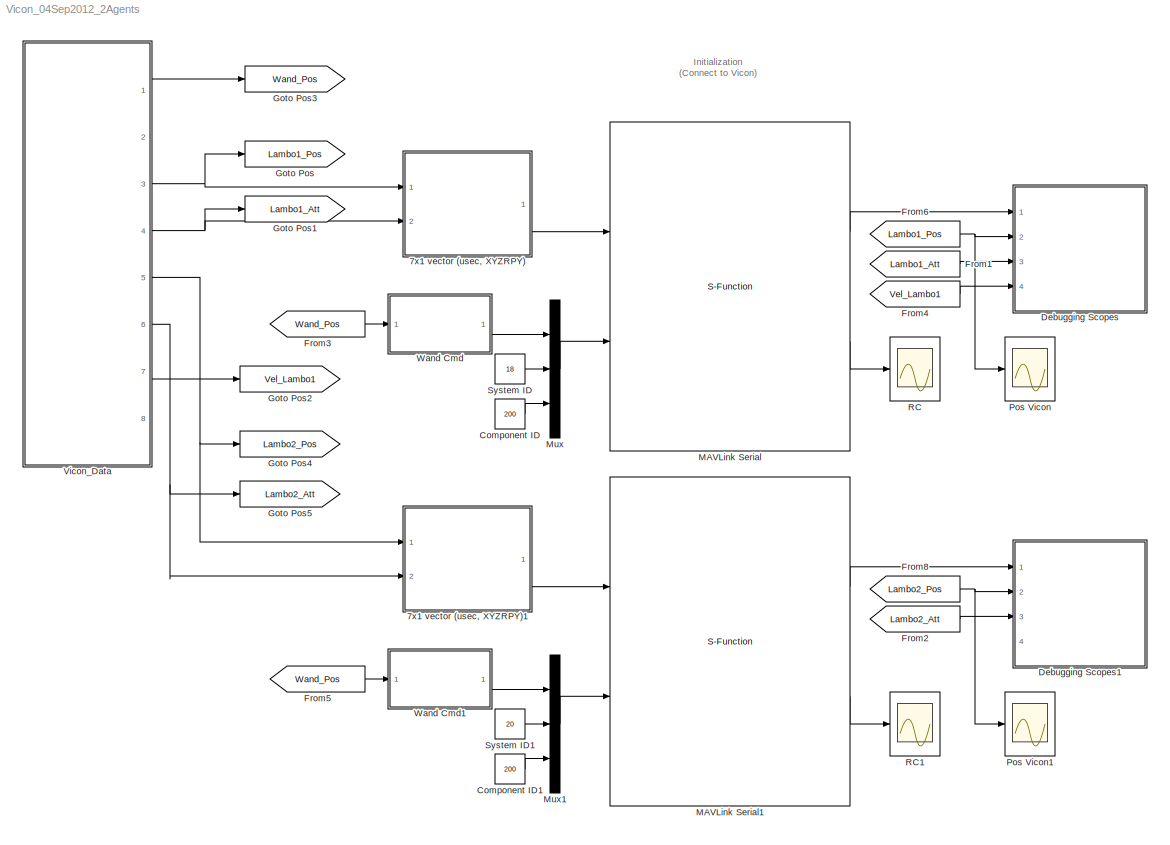
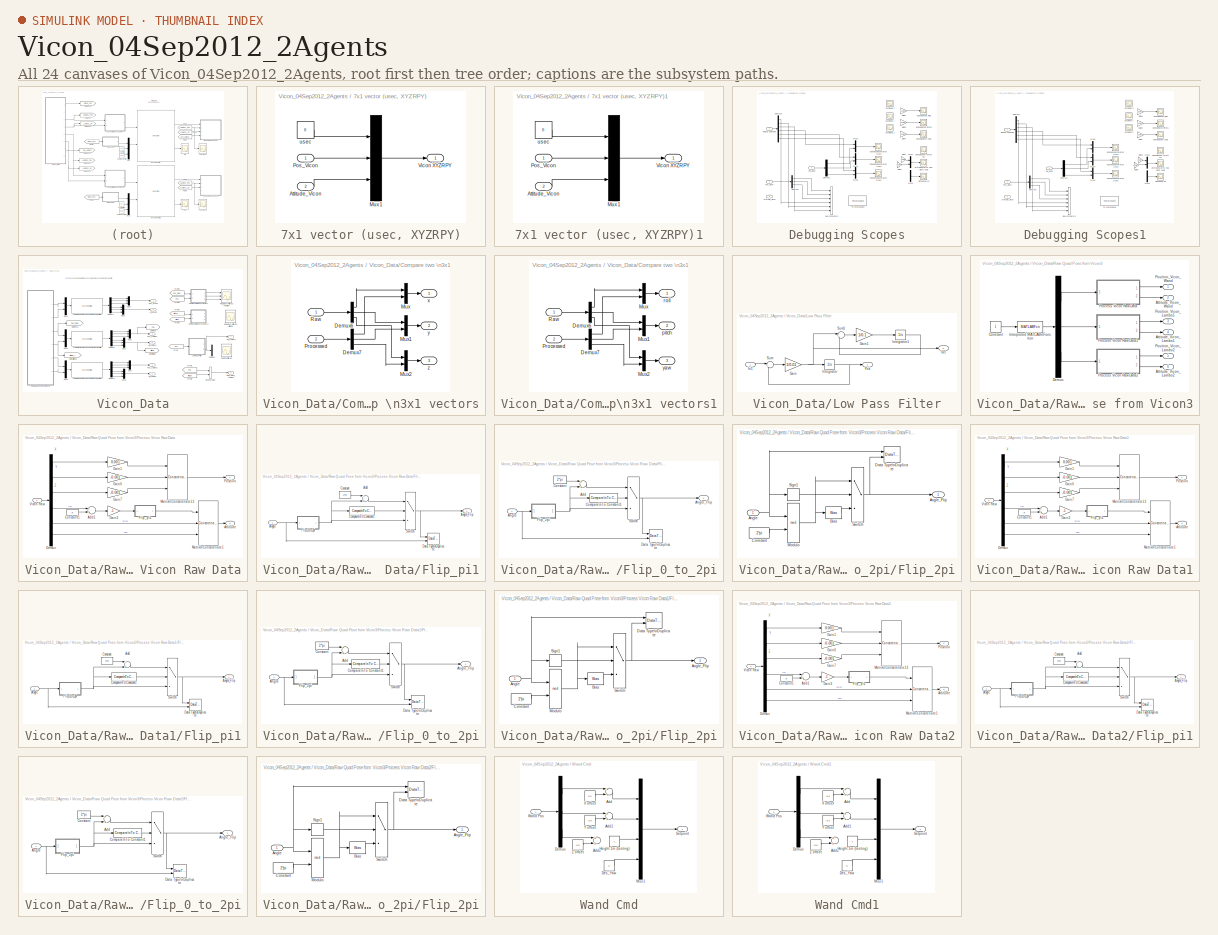
[diagram: thumbnail index - all 24 canvases of the model, root first then tree order]
MODEL Vicon_04Sep2012_2Agents
KIND model
CONFIG InitFcn = sample_time=0.01;
CONFIG PreLoadFcn = addpath([cd filesep 'MATLAB_vicon']);\naddpath([cd filesep 'MATLAB_vicon\\Microsoft.VC90.CRT']);
BLOCK [SubSystem] 7x1 vector (usec, XYZRPY)
  FunctionWithSeparateData = off
  MaskHideContents = off
  MinAlgLoopOccurrences = off
  Opaque = off
  Ports = [2, 1]
  PropExecContextOutsideSubsystem = off
  RTWSystemCode = Auto
  RequestExecContextInheritance = off
  SID = 543
BLOCK [Inport] 7x1 vector (usec, XYZRPY)/Attitude_Vicon
  IconDisplay = Port number
  Port = 2
  SID = 546
BLOCK [Mux] 7x1 vector (usec, XYZRPY)/Mux1
  DisplayOption = bar
  Inputs = 3
  Ports = [3, 1]
  SID = 495
BLOCK [Inport] 7x1 vector (usec, XYZRPY)/Pos_Vicon
  IconDisplay = Port number
  SID = 544
BLOCK [Outport] 7x1 vector (usec, XYZRPY)/Vicon XYZRPY
  IconDisplay = Port number
  SID = 545
BLOCK [Constant] 7x1 vector (usec, XYZRPY)/usec
  SID = 496
  Value = 0
BLOCK [SubSystem] 7x1 vector (usec, XYZRPY)1
  FunctionWithSeparateData = off
  MaskHideContents = off
  MinAlgLoopOccurrences = off
  Opaque = off
  Ports = [2, 1]
  PropExecContextOutsideSubsystem = off
  RTWSystemCode = Auto
  RequestExecContextInheritance = off
  SID = 1739
BLOCK [Inport] 7x1 vector (usec, XYZRPY)1/Attitude_Vicon
  IconDisplay = Port number
  Port = 2
  SID = 1741
BLOCK [Mux] 7x1 vector (usec, XYZRPY)1/Mux1
  DisplayOption = bar
  Inputs = 3
  Ports = [3, 1]
  SID = 1742
BLOCK [Inport] 7x1 vector (usec, XYZRPY)1/Pos_Vicon
  IconDisplay = Port number
  SID = 1740
BLOCK [Outport] 7x1 vector (usec, XYZRPY)1/Vicon XYZRPY
  IconDisplay = Port number
  SID = 1744
BLOCK [Constant] 7x1 vector (usec, XYZRPY)1/usec
  SID = 1743
  Value = 0
BLOCK [Constant] Component ID
  SID = 797
  SampleTime = sample_time
  Value = 200
BLOCK [Constant] Component ID1
  SID = 1745
  SampleTime = sample_time
  Value = 200
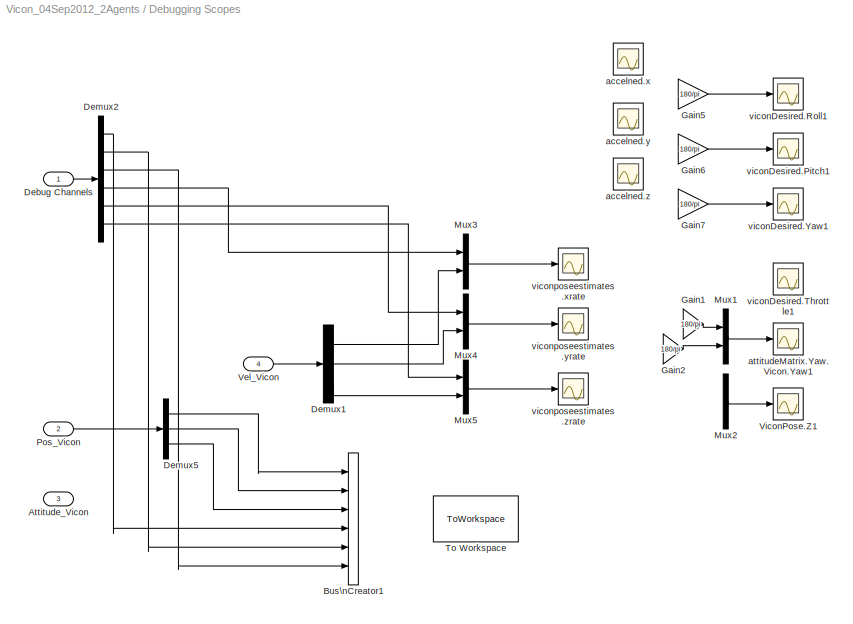
BLOCK [SubSystem] Debugging Scopes
  FunctionWithSeparateData = off
  MaskHideContents = off
  MinAlgLoopOccurrences = off
  Opaque = off
  Ports = [4]
  PropExecContextOutsideSubsystem = off
  RTWSystemCode = Auto
  RequestExecContextInheritance = off
  SID = 564
BLOCK [Inport] Debugging Scopes/Attitude_Vicon
  IconDisplay = Port number
  Port = 3
  SID = 568
BLOCK [BusCreator] Debugging Scopes/Bus\nCreator1
  DisplayOption = bar
  Inputs = 6
  Ports = [6, 1]
  SID = 560
BLOCK [Inport] Debugging Scopes/Debug Channels
  IconDisplay = Port number
  SID = 565
BLOCK [Demux] Debugging Scopes/Demux1
  DisplayOption = bar
  Outputs = 3
  Ports = [1, 3]
  SID = 822
BLOCK [Demux] Debugging Scopes/Demux2
  DisplayOption = bar
  Outputs = 6
  Ports = [1, 6]
  SID = 93
BLOCK [Demux] Debugging Scopes/Demux5
  DisplayOption = bar
  Outputs = 3
  Ports = [1, 3]
  SID = 509
BLOCK [Gain] Debugging Scopes/Gain1
  Gain = 180/pi
  OutDataTypeStr = Inherit: Inherit via internal rule
  ParamDataTypeStr = Inherit: Inherit via internal rule
  SID = 810
  SaturateOnIntegerOverflow = off
BLOCK [Gain] Debugging Scopes/Gain2
  Gain = 180/pi
  OutDataTypeStr = Inherit: Inherit via internal rule
  ParamDataTypeStr = Inherit: Inherit via internal rule
  SID = 811
  SaturateOnIntegerOverflow = off
BLOCK [Gain] Debugging Scopes/Gain5
  Gain = 180/pi
  OutDataTypeStr = Inherit: Inherit via internal rule
  ParamDataTypeStr = Inherit: Inherit via internal rule
  SID = 804
  SaturateOnIntegerOverflow = off
BLOCK [Gain] Debugging Scopes/Gain6
  Gain = 180/pi
  OutDataTypeStr = Inherit: Inherit via internal rule
  ParamDataTypeStr = Inherit: Inherit via internal rule
  SID = 805
  SaturateOnIntegerOverflow = off
BLOCK [Gain] Debugging Scopes/Gain7
  Gain = 180/pi
  OutDataTypeStr = Inherit: Inherit via internal rule
  ParamDataTypeStr = Inherit: Inherit via internal rule
  SID = 806
  SaturateOnIntegerOverflow = off
BLOCK [Mux] Debugging Scopes/Mux1
  DisplayOption = bar
  Inputs = 2
  Ports = [2, 1]
  SID = 812
BLOCK [Mux] Debugging Scopes/Mux2
  DisplayOption = bar
  Inputs = 2
  Ports = [2, 1]
  SID = 813
BLOCK [Mux] Debugging Scopes/Mux3
  DisplayOption = bar
  Inputs = 2
  Ports = [2, 1]
  SID = 823
BLOCK [Mux] Debugging Scopes/Mux4
  DisplayOption = bar
  Inputs = 2
  Ports = [2, 1]
  SID = 824
BLOCK [Mux] Debugging Scopes/Mux5
  DisplayOption = bar
  Inputs = 2
  Ports = [2, 1]
  SID = 825
BLOCK [Inport] Debugging Scopes/Pos_Vicon
  IconDisplay = Port number
  Port = 2
  SID = 566
BLOCK [ToWorkspace] Debugging Scopes/To Workspace
  MaxDataPoints = inf
  Ports = [1]
  SID = 561
  SampleTime = sample_time
  SaveFormat = Structure With Time
  VariableName = pos_accel_data
BLOCK [Inport] Debugging Scopes/Vel_Vicon
  IconDisplay = Port number
  Port = 4
  SID = 818
BLOCK [Scope] Debugging Scopes/ViconPose.Z1
  DataFormat = StructureWithTime
  Floating = off
  LimitDataPoints = off
  NumInputPorts = 1
  Ports = [1]
  SID = 814
  SampleInput = on
  SampleTime = 0
  SaveName = ScopeData9
  TickLabels = on
  TimeRange = 60
  YMax = -0.2
  YMin = -0.475
  ZoomMode = yonly
BLOCK [Scope] Debugging Scopes/accelned.x
  DataFormat = StructureWithTime
  Floating = off
  LimitDataPoints = off
  NumInputPorts = 1
  Ports = [1]
  SID = 517
  SampleInput = on
  SampleTime = 0
  SaveName = ScopeData1
  TickLabels = on
  TimeRange = 60
  YMax = -0.0325
  YMin = -0.06
  ZoomMode = xonly
BLOCK [Scope] Debugging Scopes/accelned.y
  DataFormat = StructureWithTime
  Floating = off
  LimitDataPoints = off
  NumInputPorts = 1
  Ports = [1]
  SID = 518
  SampleInput = on
  SampleTime = 0
  SaveName = ScopeData13
  TickLabels = on
  TimeRange = 25
  YMax = 4.34
  YMin = 4.12
  ZoomMode = yonly
BLOCK [Scope] Debugging Scopes/accelned.z
  DataFormat = StructureWithTime
  Floating = off
  LimitDataPoints = off
  NumInputPorts = 1
  Ports = [1]
  SID = 519
  SampleInput = on
  SampleTime = 0
  SaveName = ScopeData14
  TickLabels = on
  TimeRange = 60
  YMax = 0.31
  YMin = 0.18
  ZoomMode = xonly
BLOCK [Scope] Debugging Scopes/attitudeMatrix.Yaw. Vicon.Yaw1
  DataFormat = StructureWithTime
  Floating = off
  LimitDataPoints = off
  NumInputPorts = 1
  Ports = [1]
  SID = 815
  SampleInput = on
  SampleTime = 0
  SaveName = ScopeData15
  TickLabels = on
  TimeRange = 60
  YMax = -72.5
  YMin = -81
  ZoomMode = yonly
BLOCK [Scope] Debugging Scopes/viconDesired.Pitch1
  DataFormat = StructureWithTime
  Floating = off
  LimitDataPoints = off
  NumInputPorts = 1
  Ports = [1]
  SID = 807
  SampleInput = on
  SampleTime = 0
  SaveName = ScopeData6
  TickLabels = on
  TimeRange = 25
  YMax = 1
  YMin = -10.5
  ZoomMode = xonly
BLOCK [Scope] Debugging Scopes/viconDesired.Roll1
  DataFormat = StructureWithTime
  Floating = off
  LimitDataPoints = off
  NumInputPorts = 1
  Ports = [1]
  SID = 808
  SampleInput = on
  SampleTime = 0
  SaveName = ScopeData7
  TickLabels = on
  TimeRange = 60
  YMax = 7
  ZoomMode = xonly
BLOCK [Scope] Debugging Scopes/viconDesired.Throttle1
  DataFormat = StructureWithTime
  Floating = off
  LimitDataPoints = off
  NumInputPorts = 1
  Ports = [1]
  SID = 816
  SampleInput = on
  SampleTime = 0
  SaveName = ScopeData16
  TickLabels = on
  TimeRange = 60
  YMax = 0.5
  YMin = 0
  ZoomMode = yonly
BLOCK [Scope] Debugging Scopes/viconDesired.Yaw1
  DataFormat = StructureWithTime
  Floating = off
  LimitDataPoints = off
  NumInputPorts = 1
  Ports = [1]
  SID = 809
  SampleInput = on
  SampleTime = 0
  SaveName = ScopeData8
  TickLabels = on
  TimeRange = 60
  YMax = -0.0725
  YMin = -0.125
  ZoomMode = xonly
BLOCK [Scope] Debugging Scopes/viconposeestimates.xrate
  DataFormat = StructureWithTime
  Floating = off
  LimitDataPoints = off
  NumInputPorts = 1
  Ports = [1]
  SID = 95
  SampleInput = on
  SampleTime = 0
  TickLabels = on
  TimeRange = 60
  YMax = 0.0175
  YMin = -0.0175
  ZoomMode = yonly
BLOCK [Scope] Debugging Scopes/viconposeestimates.yrate
  DataFormat = StructureWithTime
  Floating = off
  LimitDataPoints = off
  NumInputPorts = 1
  Ports = [1]
  SID = 504
  SampleInput = on
  SampleTime = 0
  SaveName = ScopeData11
  TickLabels = on
  TimeRange = 60
  YMax = 0.0125
  YMin = -0.015
BLOCK [Scope] Debugging Scopes/viconposeestimates.zrate
  DataFormat = StructureWithTime
  Floating = off
  LimitDataPoints = off
  NumInputPorts = 1
  Ports = [1]
  SID = 506
  SampleInput = on
  SampleTime = 0
  SaveName = ScopeData12
  TickLabels = on
  TimeRange = 60
  YMax = 60
  YMin = -10
BLOCK [SubSystem] Debugging Scopes1
  FunctionWithSeparateData = off
  MaskHideContents = off
  MinAlgLoopOccurrences = off
  Opaque = off
  Ports = [4]
  PropExecContextOutsideSubsystem = off
  RTWSystemCode = Auto
  RequestExecContextInheritance = off
  SID = 1746
BLOCK [Inport] Debugging Scopes1/Attitude_Vicon
  IconDisplay = Port number
  Port = 3
  SID = 1749
BLOCK [BusCreator] Debugging Scopes1/Bus\nCreator1
  DisplayOption = bar
  Inputs = 6
  Ports = [6, 1]
  SID = 1751
BLOCK [Inport] Debugging Scopes1/Debug Channels
  IconDisplay = Port number
  SID = 1747
BLOCK [Demux] Debugging Scopes1/Demux1
  DisplayOption = bar
  Outputs = 3
  Ports = [1, 3]
  SID = 1752
BLOCK [Demux] Debugging Scopes1/Demux2
  DisplayOption = bar
  Outputs = 6
  Ports = [1, 6]
  SID = 1753
BLOCK [Demux] Debugging Scopes1/Demux5
  DisplayOption = bar
  Outputs = 3
  Ports = [1, 3]
  SID = 1754
BLOCK [Gain] Debugging Scopes1/Gain1
  Gain = 180/pi
  OutDataTypeStr = Inherit: Inherit via internal rule
  ParamDataTypeStr = Inherit: Inherit via internal rule
  SID = 1755
  SaturateOnIntegerOverflow = off
BLOCK [Gain] Debugging Scopes1/Gain2
  Gain = 180/pi
  OutDataTypeStr = Inherit: Inherit via internal rule
  ParamDataTypeStr = Inherit: Inherit via internal rule
  SID = 1756
  SaturateOnIntegerOverflow = off
BLOCK [Gain] Debugging Scopes1/Gain5
  Gain = 180/pi
  OutDataTypeStr = Inherit: Inherit via internal rule
  ParamDataTypeStr = Inherit: Inherit via internal rule
  SID = 1757
  SaturateOnIntegerOverflow = off
BLOCK [Gain] Debugging Scopes1/Gain6
  Gain = 180/pi
  OutDataTypeStr = Inherit: Inherit via internal rule
  ParamDataTypeStr = Inherit: Inherit via internal rule
  SID = 1758
  SaturateOnIntegerOverflow = off
BLOCK [Gain] Debugging Scopes1/Gain7
  Gain = 180/pi
  OutDataTypeStr = Inherit: Inherit via internal rule
  ParamDataTypeStr = Inherit: Inherit via internal rule
  SID = 1759
  SaturateOnIntegerOverflow = off
BLOCK [Mux] Debugging Scopes1/Mux1
  DisplayOption = bar
  Inputs = 2
  Ports = [2, 1]
  SID = 1760
BLOCK [Mux] Debugging Scopes1/Mux2
  DisplayOption = bar
  Inputs = 2
  Ports = [2, 1]
  SID = 1761
BLOCK [Mux] Debugging Scopes1/Mux3
  DisplayOption = bar
  Inputs = 2
  Ports = [2, 1]
  SID = 1762
BLOCK [Mux] Debugging Scopes1/Mux4
  DisplayOption = bar
  Inputs = 2
  Ports = [2, 1]
  SID = 1763
BLOCK [Mux] Debugging Scopes1/Mux5
  DisplayOption = bar
  Inputs = 2
  Ports = [2, 1]
  SID = 1764
BLOCK [Inport] Debugging Scopes1/Pos_Vicon
  IconDisplay = Port number
  Port = 2
  SID = 1748
BLOCK [ToWorkspace] Debugging Scopes1/To Workspace
  MaxDataPoints = inf
  Ports = [1]
  SID = 1765
  SampleTime = sample_time
  SaveFormat = Structure With Time
  VariableName = pos_accel_data_lambo2
BLOCK [Inport] Debugging Scopes1/Vel_Vicon
  IconDisplay = Port number
  Port = 4
  SID = 1750
BLOCK [Scope] Debugging Scopes1/ViconPose.Z1
  DataFormat = StructureWithTime
  Floating = off
  LimitDataPoints = off
  NumInputPorts = 1
  Ports = [1]
  SID = 1766
  SampleInput = on
  SampleTime = 0
  SaveName = ScopeData9
  TickLabels = on
  TimeRange = 60
  YMax = -0.2
  YMin = -0.475
  ZoomMode = yonly
BLOCK [Scope] Debugging Scopes1/accelned.x
  DataFormat = StructureWithTime
  Floating = off
  LimitDataPoints = off
  NumInputPorts = 1
  Ports = [1]
  SID = 1767
  SampleInput = on
  SampleTime = 0
  SaveName = ScopeData1
  TickLabels = on
  TimeRange = 60
  YMax = -0.0325
  YMin = -0.06
  ZoomMode = xonly
BLOCK [Scope] Debugging Scopes1/accelned.y
  DataFormat = StructureWithTime
  Floating = off
  LimitDataPoints = off
  NumInputPorts = 1
  Ports = [1]
  SID = 1768
  SampleInput = on
  SampleTime = 0
  SaveName = ScopeData13
  TickLabels = on
  TimeRange = 25
  YMax = 4.34
  YMin = 4.12
  ZoomMode = yonly
BLOCK [Scope] Debugging Scopes1/accelned.z
  DataFormat = StructureWithTime
  Floating = off
  LimitDataPoints = off
  NumInputPorts = 1
  Ports = [1]
  SID = 1769
  SampleInput = on
  SampleTime = 0
  SaveName = ScopeData14
  TickLabels = on
  TimeRange = 60
  YMax = 0.31
  YMin = 0.18
  ZoomMode = xonly
BLOCK [Scope] Debugging Scopes1/attitudeMatrix.Yaw. Vicon.Yaw1
  DataFormat = StructureWithTime
  Floating = off
  LimitDataPoints = off
  NumInputPorts = 1
  Ports = [1]
  SID = 1770
  SampleInput = on
  SampleTime = 0
  SaveName = ScopeData15
  TickLabels = on
  TimeRange = 60
  YMax = -72.5
  YMin = -81
  ZoomMode = yonly
BLOCK [Scope] Debugging Scopes1/viconDesired.Pitch1
  DataFormat = StructureWithTime
  Floating = off
  LimitDataPoints = off
  NumInputPorts = 1
  Ports = [1]
  SID = 1771
  SampleInput = on
  SampleTime = 0
  SaveName = ScopeData6
  TickLabels = on
  TimeRange = 25
  YMax = 1
  YMin = -10.5
  ZoomMode = xonly
BLOCK [Scope] Debugging Scopes1/viconDesired.Roll1
  DataFormat = StructureWithTime
  Floating = off
  LimitDataPoints = off
  NumInputPorts = 1
  Ports = [1]
  SID = 1772
  SampleInput = on
  SampleTime = 0
  SaveName = ScopeData7
  TickLabels = on
  TimeRange = 60
  YMax = 7
  ZoomMode = xonly
BLOCK [Scope] Debugging Scopes1/viconDesired.Throttle1
  DataFormat = StructureWithTime
  Floating = off
  LimitDataPoints = off
  NumInputPorts = 1
  Ports = [1]
  SID = 1773
  SampleInput = on
  SampleTime = 0
  SaveName = ScopeData16
  TickLabels = on
  TimeRange = 60
  YMax = 0.5
  YMin = 0
  ZoomMode = yonly
BLOCK [Scope] Debugging Scopes1/viconDesired.Yaw1
  DataFormat = StructureWithTime
  Floating = off
  LimitDataPoints = off
  NumInputPorts = 1
  Ports = [1]
  SID = 1774
  SampleInput = on
  SampleTime = 0
  SaveName = ScopeData8
  TickLabels = on
  TimeRange = 60
  YMax = -0.0725
  YMin = -0.125
  ZoomMode = xonly
BLOCK [Scope] Debugging Scopes1/viconposeestimates.xrate
  DataFormat = StructureWithTime
  Floating = off
  LimitDataPoints = off
  NumInputPorts = 1
  Ports = [1]
  SID = 1775
  SampleInput = on
  SampleTime = 0
  TickLabels = on
  TimeRange = 60
  YMax = 0.0175
  YMin = -0.0175
  ZoomMode = yonly
BLOCK [Scope] Debugging Scopes1/viconposeestimates.yrate
  DataFormat = StructureWithTime
  Floating = off
  LimitDataPoints = off
  NumInputPorts = 1
  Ports = [1]
  SID = 1776
  SampleInput = on
  SampleTime = 0
  SaveName = ScopeData11
  TickLabels = on
  TimeRange = 60
  YMax = 0.0125
  YMin = -0.015
BLOCK [Scope] Debugging Scopes1/viconposeestimates.zrate
  DataFormat = StructureWithTime
  Floating = off
  LimitDataPoints = off
  NumInputPorts = 1
  Ports = [1]
  SID = 1777
  SampleInput = on
  SampleTime = 0
  SaveName = ScopeData12
  TickLabels = on
  TimeRange = 60
  YMax = 60
  YMin = -10
BLOCK [From] From1
  GotoTag = Lambo1_Att
  SID = 520
BLOCK [From] From2
  GotoTag = Lambo2_Att
  SID = 1778
BLOCK [From] From3
  GotoTag = Wand_Pos
  SID = 1551
BLOCK [From] From4
  GotoTag = Vel_Lambo1
  SID = 819
BLOCK [From] From5
  GotoTag = Wand_Pos
  SID = 1779
BLOCK [From] From6
  GotoTag = Lambo1_Pos
  SID = 508
BLOCK [From] From8
  GotoTag = Lambo2_Pos
  SID = 1781
BLOCK [Goto] Goto Pos
  GotoTag = Lambo1_Pos
  SID = 507
  TagVisibility = local
BLOCK [Goto] Goto Pos1
  GotoTag = Lambo1_Att
  SID = 542
  TagVisibility = local
BLOCK [Goto] Goto Pos2
  GotoTag = Vel_Lambo1
  SID = 817
  TagVisibility = local
BLOCK [Goto] Goto Pos3
  GotoTag = Wand_Pos
  SID = 1552
  TagVisibility = local
BLOCK [Goto] Goto Pos4
  GotoTag = Lambo2_Pos
  SID = 1814
  TagVisibility = local
BLOCK [Goto] Goto Pos5
  GotoTag = Lambo2_Att
  SID = 1815
  TagVisibility = local
BLOCK [S-Function] MAVLink Serial
  EnableBusSupport = off
  FunctionName = MAVLink_Interface
  MaskCallbackString = ||||||||||||||||||
  MaskDisplay = %Label block\nfprintf('MAVLink Serial\\n%s\\n%dbps', COM_Port,  Baud_Rate)\n\n%Label input ports\n\nin = 1;\nif (SET_MODE == 1)\n    port_label('input', in, 'SET MODE');\n    in = in + 1;\nend\nif (DATA_STREAM == 1)\n    port_label('input', in, 'REQUEST DATA STREAM');\n    in = in + 1;\nend\nif (ATTITUDE_COMMAND == 1)\n    port_label('input', in, 'ATTITUDE COMMAND');\n    in = in + 1;\nend\nif (AT...<+1383ch>
  MaskEnableString = on,on,on,on,on,on,on,on,on,on,on,on,on,on,on,on,on,on,on
  MaskIconFrame = on
  MaskIconOpaque = on
  MaskIconRotate = none
  MaskIconUnits = autoscale
  MaskInitialization = MSG_ID_NUM_INPUT = [uint8(11) uint8(66) uint8(59) uint8(30) uint8(32) uint8(73) uint8(104) uint8(103) uint8(50)];\nMSG_ID_NAME_INPUT = [SET_MODE DATA_STREAM ATTITUDE_COMMAND ATTITUDE_IN GPS_RAW_IN VFR_HUD_IN VICON_XYZ_RPY VICON_VEL POSITION_DESIRED];\n\nMSG_ID_NUM_OUTPUT = [uint8(0) uint8(30) uint8(27) uint8(73) uint8(74) uint8(34) uint8(37) uint8(104)];\nMSG_ID_NAME_OUTPUT = [HEART_BEAT ATTITUDE_...<+248ch>
  MaskPortRotate = default
  MaskPromptString = COM Port|Baud Rate|HEART BEAT|ATTITUDE|RAW IMU|GLOBAL POSITION |VFR HUD|RC CHANNELS SCALED|SERVO OUTPUT RAW|VICON Output|SET MODE|REQUEST DATA STREAM|ATTITUDE COMMAND|ATTITUDE (HIL)|GPS RAW (HIL)|AIRSPEED (HIL)|VICON POSITION|VICON SPEED|Position Desired
  MaskStyleString = edit,edit,checkbox,checkbox,checkbox,checkbox,checkbox,checkbox,checkbox,checkbox,checkbox,checkbox,checkbox,checkbox,checkbox,checkbox,checkbox,checkbox,checkbox
  MaskTabNameString = Setting,Setting,Output Message,Output Message,Output Message,Output Message,Output Message,Output Message,Output Message,Output Message,Input Message,Input Message,Input Message,Input Message,Input Message,Input Message,Input Message,Input Message,Input Message
  MaskToolTipString = on,on,on,on,on,on,on,on,on,on,on,on,on,on,on,on,on,on,on
  MaskTunableValueString = on,on,on,on,on,on,on,on,on,on,on,on,on,on,on,on,on,on,on
  MaskValueString = 'COM8'|57600|off|on|off|off|off|on|off|off|off|off|off|off|off|off|on|off|on
  MaskVariables = COM_Port=@1;Baud_Rate=@2;HEART_BEAT=@3;ATTITUDE_OUT=@4;RAW_IMU=@5;POSITION_OUT=@6;VFR_HUD=@7;RC_SCALED=@8;SERVO_OUT_RAW=@9;VICON_XYZ_RPY_Output=@10;SET_MODE=@11;DATA_STREAM=@12;ATTITUDE_COMMAND=@13;ATTITUDE_IN=@14;GPS_RAW_IN=@15;VFR_HUD_IN=@16;VICON_XYZ_RPY=@17;VICON_VEL=@18;POSITION_DESIRED=@19;
  MaskVisibilityString = on,on,on,on,on,on,on,on,on,on,on,on,on,on,on,on,on,on,on
  Parameters = COM_Port,Baud_Rate,MSG_INPUT,MSG_OUTPUT
  Ports = [2, 2]
  SID = 195
BLOCK [S-Function] MAVLink Serial1
  EnableBusSupport = off
  FunctionName = MAVLink_Interface
  MaskCallbackString = ||||||||||||||||||
  MaskDisplay = %Label block\nfprintf('MAVLink Serial\\n%s\\n%dbps', COM_Port,  Baud_Rate)\n\n%Label input ports\n\nin = 1;\nif (SET_MODE == 1)\n    port_label('input', in, 'SET MODE');\n    in = in + 1;\nend\nif (DATA_STREAM == 1)\n    port_label('input', in, 'REQUEST DATA STREAM');\n    in = in + 1;\nend\nif (ATTITUDE_COMMAND == 1)\n    port_label('input', in, 'ATTITUDE COMMAND');\n    in = in + 1;\nend\nif (AT...<+1383ch>
  MaskEnableString = on,on,on,on,on,on,on,on,on,on,on,on,on,on,on,on,on,on,on
  MaskIconFrame = on
  MaskIconOpaque = on
  MaskIconRotate = none
  MaskIconUnits = autoscale
  MaskInitialization = MSG_ID_NUM_INPUT = [uint8(11) uint8(66) uint8(59) uint8(30) uint8(32) uint8(73) uint8(104) uint8(103) uint8(50)];\nMSG_ID_NAME_INPUT = [SET_MODE DATA_STREAM ATTITUDE_COMMAND ATTITUDE_IN GPS_RAW_IN VFR_HUD_IN VICON_XYZ_RPY VICON_VEL POSITION_DESIRED];\n\nMSG_ID_NUM_OUTPUT = [uint8(0) uint8(30) uint8(27) uint8(73) uint8(74) uint8(34) uint8(37) uint8(104)];\nMSG_ID_NAME_OUTPUT = [HEART_BEAT ATTITUDE_...<+248ch>
  MaskPortRotate = default
  MaskPromptString = COM Port|Baud Rate|HEART BEAT|ATTITUDE|RAW IMU|GLOBAL POSITION |VFR HUD|RC CHANNELS SCALED|SERVO OUTPUT RAW|VICON Output|SET MODE|REQUEST DATA STREAM|ATTITUDE COMMAND|ATTITUDE (HIL)|GPS RAW (HIL)|AIRSPEED (HIL)|VICON POSITION|VICON SPEED|Position Desired
  MaskStyleString = edit,edit,checkbox,checkbox,checkbox,checkbox,checkbox,checkbox,checkbox,checkbox,checkbox,checkbox,checkbox,checkbox,checkbox,checkbox,checkbox,checkbox,checkbox
  MaskTabNameString = Setting,Setting,Output Message,Output Message,Output Message,Output Message,Output Message,Output Message,Output Message,Output Message,Input Message,Input Message,Input Message,Input Message,Input Message,Input Message,Input Message,Input Message,Input Message
  MaskToolTipString = on,on,on,on,on,on,on,on,on,on,on,on,on,on,on,on,on,on,on
  MaskTunableValueString = on,on,on,on,on,on,on,on,on,on,on,on,on,on,on,on,on,on,on
  MaskValueString = 'COM4'|57600|off|on|off|off|off|on|off|off|off|off|off|off|off|off|on|off|on
  MaskVariables = COM_Port=@1;Baud_Rate=@2;HEART_BEAT=@3;ATTITUDE_OUT=@4;RAW_IMU=@5;POSITION_OUT=@6;VFR_HUD=@7;RC_SCALED=@8;SERVO_OUT_RAW=@9;VICON_XYZ_RPY_Output=@10;SET_MODE=@11;DATA_STREAM=@12;ATTITUDE_COMMAND=@13;ATTITUDE_IN=@14;GPS_RAW_IN=@15;VFR_HUD_IN=@16;VICON_XYZ_RPY=@17;VICON_VEL=@18;POSITION_DESIRED=@19;
  MaskVisibilityString = on,on,on,on,on,on,on,on,on,on,on,on,on,on,on,on,on,on,on
  Parameters = COM_Port,Baud_Rate,MSG_INPUT,MSG_OUTPUT
  Ports = [2, 2]
  SID = 1786
BLOCK [Mux] Mux
  DisplayOption = bar
  Inputs = 3
  Ports = [3, 1]
  SID = 802
BLOCK [Mux] Mux1
  DisplayOption = bar
  Inputs = 3
  Ports = [3, 1]
  SID = 1787
BLOCK [Scope] Pos Vicon
  DataFormat = StructureWithTime
  Floating = off
  LimitDataPoints = off
  NumInputPorts = 1
  Ports = [1]
  SID = 1558
  SampleInput = on
  SampleTime = 0
  SaveName = ScopeData3
  TickLabels = on
  TimeRange = 30
  YMax = 3.5
  YMin = -3
BLOCK [Scope] Pos Vicon1
  DataFormat = StructureWithTime
  Floating = off
  LimitDataPoints = off
  NumInputPorts = 1
  Ports = [1]
  SID = 1788
  SampleInput = on
  SampleTime = 0
  SaveName = ScopeData17
  TickLabels = on
  TimeRange = 30
  YMax = 3.5
  YMin = -3
BLOCK [Scope] RC
  DataFormat = StructureWithTime
  Floating = off
  LimitDataPoints = off
  NumInputPorts = 1
  Ports = [1]
  SID = 59
  SampleInput = on
  SampleTime = 0
  SaveName = ScopeData2
  TickLabels = on
  TimeRange = 30
  YMax = 0.1
  YMin = -1
BLOCK [Scope] RC1
  DataFormat = StructureWithTime
  Floating = off
  LimitDataPoints = off
  NumInputPorts = 1
  Ports = [1]
  SID = 1789
  SampleInput = on
  SampleTime = 0
  SaveName = ScopeData18
  TickLabels = on
  TimeRange = 30
  YMax = 0.1
  YMin = -1
BLOCK [Constant] System ID
  SID = 798
  SampleTime = sample_time
  Value = 18
BLOCK [Constant] System ID1
  SID = 1790
  SampleTime = sample_time
  Value = 20
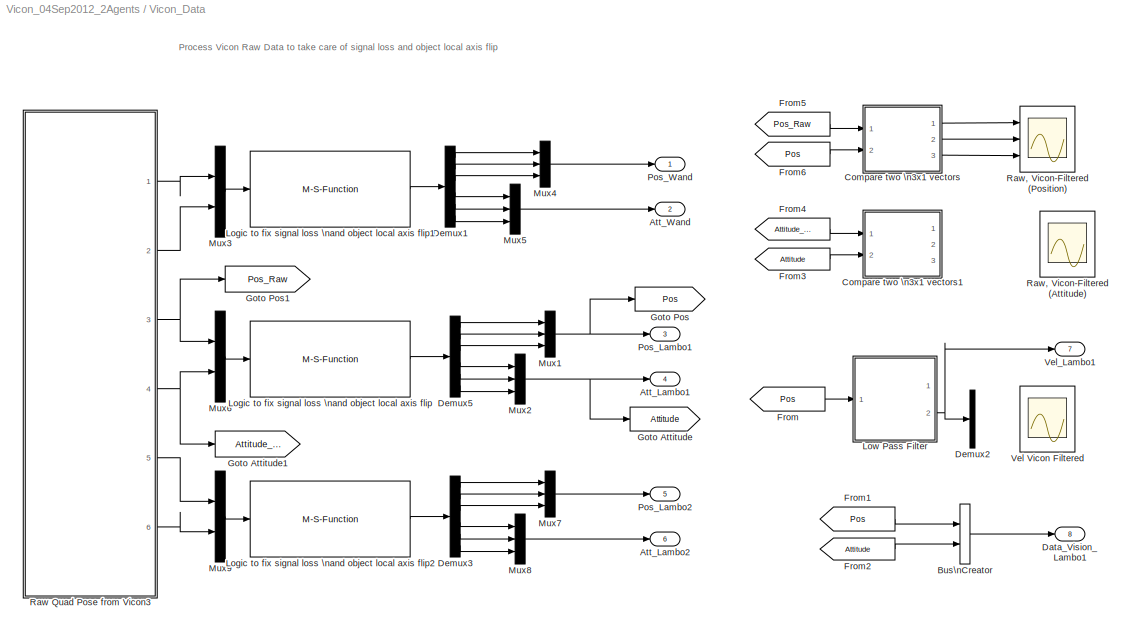
BLOCK [SubSystem] Vicon_Data
  FunctionWithSeparateData = off
  MaskHideContents = off
  MinAlgLoopOccurrences = off
  Opaque = off
  Ports = [0, 8]
  PropExecContextOutsideSubsystem = off
  RTWSystemCode = Auto
  RequestExecContextInheritance = off
  SID = 97
BLOCK [Outport] Vicon_Data/Att_Lambo1
  IconDisplay = Port number
  Port = 4
  SID = 465
BLOCK [Outport] Vicon_Data/Att_Lambo2
  IconDisplay = Port number
  Port = 6
  SID = 1813
BLOCK [Outport] Vicon_Data/Att_Wand
  IconDisplay = Port number
  Port = 2
  SID = 1368
BLOCK [BusCreator] Vicon_Data/Bus\nCreator
  DisplayOption = bar
  Inputs = 2
  Ports = [2, 1]
  SID = 594
BLOCK [SubSystem] Vicon_Data/Compare two \n3x1 vectors
  FunctionWithSeparateData = off
  MaskHideContents = off
  MinAlgLoopOccurrences = off
  Opaque = off
  Ports = [2, 3]
  PropExecContextOutsideSubsystem = off
  RTWSystemCode = Auto
  RequestExecContextInheritance = off
  SID = 366
BLOCK [Demux] Vicon_Data/Compare two \n3x1 vectors/Demux6
  DisplayOption = bar
  Outputs = 3
  Ports = [1, 3]
  SID = 369
BLOCK [Demux] Vicon_Data/Compare two \n3x1 vectors/Demux7
  DisplayOption = bar
  Outputs = 3
  Ports = [1, 3]
  SID = 370
BLOCK [Mux] Vicon_Data/Compare two \n3x1 vectors/Mux
  DisplayOption = bar
  Inputs = 2
  Ports = [2, 1]
  SID = 371
BLOCK [Mux] Vicon_Data/Compare two \n3x1 vectors/Mux1
  DisplayOption = bar
  Inputs = 2
  Ports = [2, 1]
  SID = 372
BLOCK [Mux] Vicon_Data/Compare two \n3x1 vectors/Mux2
  DisplayOption = bar
  Inputs = 2
  Ports = [2, 1]
  SID = 373
BLOCK [Inport] Vicon_Data/Compare two \n3x1 vectors/Processed
  IconDisplay = Port number
  Port = 2
  SID = 368
BLOCK [Inport] Vicon_Data/Compare two \n3x1 vectors/Raw
  IconDisplay = Port number
  SID = 367
BLOCK [Outport] Vicon_Data/Compare two \n3x1 vectors/x
  IconDisplay = Port number
  SID = 374
BLOCK [Outport] Vicon_Data/Compare two \n3x1 vectors/y
  IconDisplay = Port number
  Port = 2
  SID = 375
BLOCK [Outport] Vicon_Data/Compare two \n3x1 vectors/z
  IconDisplay = Port number
  Port = 3
  SID = 376
BLOCK [SubSystem] Vicon_Data/Compare two \n3x1 vectors1
  FunctionWithSeparateData = off
  MaskHideContents = off
  MinAlgLoopOccurrences = off
  Opaque = off
  Ports = [2, 3]
  PropExecContextOutsideSubsystem = off
  RTWSystemCode = Auto
  RequestExecContextInheritance = off
  SID = 377
BLOCK [Demux] Vicon_Data/Compare two \n3x1 vectors1/Demux6
  DisplayOption = bar
  Outputs = 3
  Ports = [1, 3]
  SID = 380
BLOCK [Demux] Vicon_Data/Compare two \n3x1 vectors1/Demux7
  DisplayOption = bar
  Outputs = 3
  Ports = [1, 3]
  SID = 381
BLOCK [Mux] Vicon_Data/Compare two \n3x1 vectors1/Mux
  DisplayOption = bar
  Inputs = 2
  Ports = [2, 1]
  SID = 382
BLOCK [Mux] Vicon_Data/Compare two \n3x1 vectors1/Mux1
  DisplayOption = bar
  Inputs = 2
  Ports = [2, 1]
  SID = 383
BLOCK [Mux] Vicon_Data/Compare two \n3x1 vectors1/Mux2
  DisplayOption = bar
  Inputs = 2
  Ports = [2, 1]
  SID = 384
BLOCK [Inport] Vicon_Data/Compare two \n3x1 vectors1/Processed
  IconDisplay = Port number
  Port = 2
  SID = 379
BLOCK [Inport] Vicon_Data/Compare two \n3x1 vectors1/Raw
  IconDisplay = Port number
  SID = 378
BLOCK [Outport] Vicon_Data/Compare two \n3x1 vectors1/pitch
  IconDisplay = Port number
  Port = 2
  SID = 386
BLOCK [Outport] Vicon_Data/Compare two \n3x1 vectors1/roll
  IconDisplay = Port number
  SID = 385
BLOCK [Outport] Vicon_Data/Compare two \n3x1 vectors1/yaw
  IconDisplay = Port number
  Port = 3
  SID = 387
BLOCK [Outport] Vicon_Data/Data_Vision_Lambo1
  IconDisplay = Port number
  Port = 8
  SID = 466
BLOCK [Demux] Vicon_Data/Demux1
  DisplayOption = bar
  Outputs = 6
  Ports = [1, 6]
  SID = 1319
BLOCK [Demux] Vicon_Data/Demux2
  DisplayOption = bar
  Outputs = 3
  Ports = [1, 3]
  SID = 388
BLOCK [Demux] Vicon_Data/Demux3
  DisplayOption = bar
  Outputs = 6
  Ports = [1, 6]
  SID = 1805
BLOCK [Demux] Vicon_Data/Demux5
  DisplayOption = bar
  Outputs = 6
  Ports = [1, 6]
  SID = 390
BLOCK [From] Vicon_Data/From
  GotoTag = Pos
  SID = 393
BLOCK [From] Vicon_Data/From1
  GotoTag = Pos
  SID = 592
BLOCK [From] Vicon_Data/From2
  GotoTag = Attitude
  SID = 593
BLOCK [From] Vicon_Data/From3
  GotoTag = Attitude
  SID = 483
BLOCK [From] Vicon_Data/From4
  GotoTag = Attitude_Raw
  SID = 484
BLOCK [From] Vicon_Data/From5
  GotoTag = Pos_Raw
  SID = 485
BLOCK [From] Vicon_Data/From6
  GotoTag = Pos
  SID = 486
BLOCK [Goto] Vicon_Data/Goto Attitude
  GotoTag = Attitude
  SID = 397
  TagVisibility = local
BLOCK [Goto] Vicon_Data/Goto Attitude1
  GotoTag = Attitude_Raw
  SID = 481
  TagVisibility = local
BLOCK [Goto] Vicon_Data/Goto Pos
  GotoTag = Pos
  SID = 396
  TagVisibility = local
BLOCK [Goto] Vicon_Data/Goto Pos1
  GotoTag = Pos_Raw
  SID = 480
  TagVisibility = local
BLOCK [M-S-Function] Vicon_Data/Logic to fix signal loss \nand object local axis flip
  FunctionName = Vicon_Filter
  Ports = [1, 1]
  SID = 398
BLOCK [M-S-Function] Vicon_Data/Logic to fix signal loss \nand object local axis flip1
  FunctionName = Vicon_Filter
  Ports = [1, 1]
  SID = 1324
BLOCK [M-S-Function] Vicon_Data/Logic to fix signal loss \nand object local axis flip2
  FunctionName = Vicon_Filter
  Ports = [1, 1]
  SID = 1808
BLOCK [SubSystem] Vicon_Data/Low Pass Filter
  FunctionWithSeparateData = off
  MaskHideContents = off
  MinAlgLoopOccurrences = off
  Opaque = off
  Ports = [1, 2]
  PropExecContextOutsideSubsystem = off
  RTWSystemCode = Auto
  RequestExecContextInheritance = off
  SID = 399
BLOCK [Gain] Vicon_Data/Low Pass Filter/Gain
  Gain = 1/0.01
  OutDataTypeStr = Inherit: Inherit via internal rule
  ParamDataTypeStr = Inherit: Inherit via internal rule
  SID = 401
  SaturateOnIntegerOverflow = off
BLOCK [Gain] Vicon_Data/Low Pass Filter/Gain1
  Gain = 1/0.1
  OutDataTypeStr = Inherit: Inherit via internal rule
  ParamDataTypeStr = Inherit: Inherit via internal rule
  SID = 550
  SaturateOnIntegerOverflow = off
BLOCK [Inport] Vicon_Data/Low Pass Filter/In1
  IconDisplay = Port number
  SID = 400
BLOCK [Integrator] Vicon_Data/Low Pass Filter/Integrator
  Ports = [1, 1]
  SID = 402
BLOCK [Integrator] Vicon_Data/Low Pass Filter/Integrator1
  Ports = [1, 1]
  SID = 551
BLOCK [Outport] Vicon_Data/Low Pass Filter/Pos
  IconDisplay = Port number
  SID = 404
BLOCK [Sum] Vicon_Data/Low Pass Filter/Sum
  IconShape = round
  InputSameDT = off
  Inputs = |+-
  OutDataTypeStr = Inherit: Inherit via internal rule
  Ports = [2, 1]
  SID = 403
  SaturateOnIntegerOverflow = off
BLOCK [Sum] Vicon_Data/Low Pass Filter/Sum1
  IconShape = round
  InputSameDT = off
  Inputs = |+-
  OutDataTypeStr = Inherit: Inherit via internal rule
  Ports = [2, 1]
  SID = 552
  SaturateOnIntegerOverflow = off
BLOCK [Outport] Vicon_Data/Low Pass Filter/Vel
  IconDisplay = Port number
  Port = 2
  SID = 405
BLOCK [Mux] Vicon_Data/Mux1
  DisplayOption = bar
  Inputs = 3
  Ports = [3, 1]
  SID = 414
BLOCK [Mux] Vicon_Data/Mux2
  DisplayOption = bar
  Inputs = 3
  Ports = [3, 1]
  SID = 415
BLOCK [Mux] Vicon_Data/Mux3
  DisplayOption = bar
  Inputs = 2
  Ports = [2, 1]
  SID = 1325
BLOCK [Mux] Vicon_Data/Mux4
  DisplayOption = bar
  Inputs = 3
  Ports = [3, 1]
  SID = 1326
BLOCK [Mux] Vicon_Data/Mux5
  DisplayOption = bar
  Inputs = 3
  Ports = [3, 1]
  SID = 1327
BLOCK [Mux] Vicon_Data/Mux6
  DisplayOption = bar
  Inputs = 2
  Ports = [2, 1]
  SID = 1804
BLOCK [Mux] Vicon_Data/Mux7
  DisplayOption = bar
  Inputs = 3
  Ports = [3, 1]
  SID = 1809
BLOCK [Mux] Vicon_Data/Mux8
  DisplayOption = bar
  Inputs = 3
  Ports = [3, 1]
  SID = 1810
BLOCK [Mux] Vicon_Data/Mux9
  DisplayOption = bar
  Inputs = 2
  Ports = [2, 1]
  SID = 1811
BLOCK [Outport] Vicon_Data/Pos_Lambo1
  IconDisplay = Port number
  Port = 3
  SID = 464
BLOCK [Outport] Vicon_Data/Pos_Lambo2
  IconDisplay = Port number
  Port = 5
  SID = 1812
BLOCK [Outport] Vicon_Data/Pos_Wand
  IconDisplay = Port number
  SID = 1367
BLOCK [SubSystem] Vicon_Data/Raw Quad Pose from Vicon3
  FunctionWithSeparateData = off
  MaskHideContents = off
  MinAlgLoopOccurrences = off
  Opaque = off
  Ports = [0, 6]
  PropExecContextOutsideSubsystem = off
  RTWSystemCode = Auto
  RequestExecContextInheritance = off
  SID = 1387
BLOCK [Outport] Vicon_Data/Raw Quad Pose from Vicon3/Attitude_Vicon_Lambo1
  IconDisplay = Port number
  Port = 4
  SID = 1470
BLOCK [Outport] Vicon_Data/Raw Quad Pose from Vicon3/Attitude_Vicon_Lambo2
  IconDisplay = Port number
  Port = 6
  SID = 1510
BLOCK [Outport] Vicon_Data/Raw Quad Pose from Vicon3/Attitude_Vicon_Wand
  IconDisplay = Port number
  Port = 2
  SID = 1425
BLOCK [Constant] Vicon_Data/Raw Quad Pose from Vicon3/Constant
  SID = 1389
BLOCK [Demux] Vicon_Data/Raw Quad Pose from Vicon3/Demux
  DisplayOption = bar
  Outputs = 3
  Ports = [1, 3]
  SID = 1557
BLOCK [MATLABFcn] Vicon_Data/Raw Quad Pose from Vicon3/Interpreted MATLAB\nFunction
  MATLABFcn = GetViconPose
  Ports = [1, 1]
  SID = 1556
BLOCK [Outport] Vicon_Data/Raw Quad Pose from Vicon3/Position_Vicon_Lambo1
  IconDisplay = Port number
  Port = 3
  SID = 1469
BLOCK [Outport] Vicon_Data/Raw Quad Pose from Vicon3/Position_Vicon_Lambo2
  IconDisplay = Port number
  Port = 5
  SID = 1509
BLOCK [Outport] Vicon_Data/Raw Quad Pose from Vicon3/Position_Vicon_Wand
  IconDisplay = Port number
  SID = 1424
BLOCK [SubSystem] Vicon_Data/Raw Quad Pose from Vicon3/Process Vicon Raw Data
  FunctionWithSeparateData = off
  MaskHideContents = off
  MinAlgLoopOccurrences = off
  Opaque = off
  Ports = [1, 2]
  PropExecContextOutsideSubsystem = off
  RTWSystemCode = Auto
  RequestExecContextInheritance = off
  SID = 1426
BLOCK [Sum] Vicon_Data/Raw Quad Pose from Vicon3/Process Vicon Raw Data/Add1
  InputSameDT = off
  Inputs = -+
  OutDataTypeStr = Inherit: Inherit via internal rule
  Ports = [2, 1]
  SID = 1388
  SaturateOnIntegerOverflow = off
BLOCK [Outport] Vicon_Data/Raw Quad Pose from Vicon3/Process Vicon Raw Data/Attitude
  IconDisplay = Port number
  Port = 2
  SID = 1429
BLOCK [Constant] Vicon_Data/Raw Quad Pose from Vicon3/Process Vicon Raw Data/Constant1
  OutDataTypeStr = double
  SID = 1390
  Value = pi
BLOCK [Demux] Vicon_Data/Raw Quad Pose from Vicon3/Process Vicon Raw Data/Demux
  DisplayOption = bar
  Outputs = 6
  Ports = [1, 6]
  SID = 1391
BLOCK [SubSystem] Vicon_Data/Raw Quad Pose from Vicon3/Process Vicon Raw Data/Flip_pi1
  FunctionWithSeparateData = off
  MaskDescription = Flips the inputs into the range -pi to pi
  MaskDisplay = disp('Flip_pi')
  MaskHelp = Flips the inputs into the range -pi to pi
  MaskHideContents = off
  MaskIconFrame = on
  MaskIconOpaque = on
  MaskIconRotate = none
  MaskIconUnits = autoscale
  MaskPortRotate = default
  MaskType = Flip -pi to pi
  MinAlgLoopOccurrences = off
  Opaque = off
  Ports = [1, 1]
  PropExecContextOutsideSubsystem = off
  RTWSystemCode = Auto
  RequestExecContextInheritance = off
  SID = 1392
BLOCK [Sum] Vicon_Data/Raw Quad Pose from Vicon3/Process Vicon Raw Data/Flip_pi1/Add
  InputSameDT = off
  Inputs = -+
  OutDataTypeStr = Inherit: Inherit via internal rule
  Ports = [2, 1]
  SID = 1394
  SaturateOnIntegerOverflow = off
BLOCK [Inport] Vicon_Data/Raw Quad Pose from Vicon3/Process Vicon Raw Data/Flip_pi1/Angle
  IconDisplay = Port number
  SID = 1393
BLOCK [Outport] Vicon_Data/Raw Quad Pose from Vicon3/Process Vicon Raw Data/Flip_pi1/Angle_Flip
  IconDisplay = Port number
  SID = 1416
BLOCK [Reference] Vicon_Data/Raw Quad Pose from Vicon3/Process Vicon Raw Data/Flip_pi1/Compare\nTo Constant1  REF=simulink/Logic and Bit\nOperations/Compare\nTo Constant
  FunctionWithSeparateData = off
  GeneratePreprocessorConditionals = off
  LogicOutDataTypeMode = uint8
  Ports = [1, 1]
  RTWMemSecDataConstants = Inherit from model
  RTWMemSecDataInternal = Inherit from model
  RTWMemSecDataParameters = Inherit from model
  RTWMemSecFuncExecute = Inherit from model
  RTWMemSecFuncInitTerm = Inherit from model
  SID = 1395
  ShowPortLabels = FromPortIcon
  SourceBlock = simulink/Logic and Bit\nOperations/Compare\nTo Constant
  SourceType = Compare To Constant
  SystemSampleTime = -1
  ZeroCross = off
  const = pi
  relop = >
BLOCK [Constant] Vicon_Data/Raw Quad Pose from Vicon3/Process Vicon Raw Data/Flip_pi1/Constant
  SID = 1396
  Value = 2*pi
BLOCK [DataTypeDuplicate] Vicon_Data/Raw Quad Pose from Vicon3/Process Vicon Raw Data/Flip_pi1/Data Type\nDuplicate
  Ports = [2]
  SID = 1397
BLOCK [SubSystem] Vicon_Data/Raw Quad Pose from Vicon3/Process Vicon Raw Data/Flip_pi1/Flip_0_to_2pi
  FunctionWithSeparateData = off
  MaskDescription = Flips the inputs into the range zero to +2pi
  MaskDisplay = disp('Flip_0_2pi')
  MaskHelp = Flips the inputs into the range zero to +2pi
  MaskHideContents = off
  MaskIconFrame = on
  MaskIconOpaque = on
  MaskIconRotate = none
  MaskIconUnits = autoscale
  MaskPortRotate = default
  MaskType = Flip zero to 2pi
  MinAlgLoopOccurrences = off
  Opaque = off
  Ports = [1, 1]
  PropExecContextOutsideSubsystem = off
  RTWSystemCode = Auto
  RequestExecContextInheritance = off
  SID = 1398
BLOCK [Sum] Vicon_Data/Raw Quad Pose from Vicon3/Process Vicon Raw Data/Flip_pi1/Flip_0_to_2pi/Add
  InputSameDT = off
  OutDataTypeStr = Inherit: Inherit via internal rule
  Ports = [2, 1]
  SID = 1400
  SaturateOnIntegerOverflow = off
BLOCK [Inport] Vicon_Data/Raw Quad Pose from Vicon3/Process Vicon Raw Data/Flip_pi1/Flip_0_to_2pi/Angle
  IconDisplay = Port number
  SID = 1399
BLOCK [Outport] Vicon_Data/Raw Quad Pose from Vicon3/Process Vicon Raw Data/Flip_pi1/Flip_0_to_2pi/Angle_Flip
  IconDisplay = Port number
  SID = 1414
BLOCK [Reference] Vicon_Data/Raw Quad Pose from Vicon3/Process Vicon Raw Data/Flip_pi1/Flip_0_to_2pi/Compare\nTo Constant1  REF=simulink/Logic and Bit\nOperations/Compare\nTo Constant
  FunctionWithSeparateData = off
  GeneratePreprocessorConditionals = off
  LogicOutDataTypeMode = uint8
  Ports = [1, 1]
  RTWMemSecDataConstants = Inherit from model
  RTWMemSecDataInternal = Inherit from model
  RTWMemSecDataParameters = Inherit from model
  RTWMemSecFuncExecute = Inherit from model
  RTWMemSecFuncInitTerm = Inherit from model
  SID = 1401
  ShowPortLabels = FromPortIcon
  SourceBlock = simulink/Logic and Bit\nOperations/Compare\nTo Constant
  SourceType = Compare To Constant
  SystemSampleTime = -1
  ZeroCross = off
  const = 0
  relop = <
BLOCK [Constant] Vicon_Data/Raw Quad Pose from Vicon3/Process Vicon Raw Data/Flip_pi1/Flip_0_to_2pi/Constant
  SID = 1402
  Value = 2*pi
BLOCK [DataTypeDuplicate] Vicon_Data/Raw Quad Pose from Vicon3/Process Vicon Raw Data/Flip_pi1/Flip_0_to_2pi/Data Type\nDuplicate
  Ports = [2]
  SID = 1403
BLOCK [SubSystem] Vicon_Data/Raw Quad Pose from Vicon3/Process Vicon Raw Data/Flip_pi1/Flip_0_to_2pi/Flip_2pi
  FunctionWithSeparateData = off
  MaskDescription = Flips the inputs into the range -2pi to +2pi
  MaskDisplay = disp('Flip_2pi')
  MaskHelp = Flips the inputs into the range -2pi to +2pi
  MaskHideContents = off
  MaskIconFrame = on
  MaskIconOpaque = on
  MaskIconRotate = none
  MaskIconUnits = autoscale
  MaskPortRotate = default
  MaskType = Flip -2pi to 2pi
  MinAlgLoopOccurrences = off
  Opaque = off
  Ports = [1, 1]
  PropExecContextOutsideSubsystem = off
  RTWSystemCode = Auto
  RequestExecContextInheritance = off
  SID = 1404
BLOCK [Inport] Vicon_Data/Raw Quad Pose from Vicon3/Process Vicon Raw Data/Flip_pi1/Flip_0_to_2pi/Flip_2pi/Angle
  IconDisplay = Port number
  SID = 1405
BLOCK [Outport] Vicon_Data/Raw Quad Pose from Vicon3/Process Vicon Raw Data/Flip_pi1/Flip_0_to_2pi/Flip_2pi/Angle_Flip
  IconDisplay = Port number
  SID = 1412
BLOCK [Bias] Vicon_Data/Raw Quad Pose from Vicon3/Process Vicon Raw Data/Flip_pi1/Flip_0_to_2pi/Flip_2pi/Bias
  Bias = -2*pi
  SID = 1406
  SaturateOnIntegerOverflow = off
BLOCK [Constant] Vicon_Data/Raw Quad Pose from Vicon3/Process Vicon Raw Data/Flip_pi1/Flip_0_to_2pi/Flip_2pi/Constant
  SID = 1407
  Value = 2*pi
BLOCK [DataTypeDuplicate] Vicon_Data/Raw Quad Pose from Vicon3/Process Vicon Raw Data/Flip_pi1/Flip_0_to_2pi/Flip_2pi/Data Type\nDuplicate
  Ports = [2]
  SID = 1408
BLOCK [Math] Vicon_Data/Raw Quad Pose from Vicon3/Process Vicon Raw Data/Flip_pi1/Flip_0_to_2pi/Flip_2pi/Modulo
  Operator = mod
  Ports = [2, 1]
  SID = 1409
BLOCK [Signum] Vicon_Data/Raw Quad Pose from Vicon3/Process Vicon Raw Data/Flip_pi1/Flip_0_to_2pi/Flip_2pi/Sign1
  SID = 1410
BLOCK [Switch] Vicon_Data/Raw Quad Pose from Vicon3/Process Vicon Raw Data/Flip_pi1/Flip_0_to_2pi/Flip_2pi/Switch
  InputSameDT = off
  SID = 1411
  SaturateOnIntegerOverflow = off
BLOCK [Switch] Vicon_Data/Raw Quad Pose from Vicon3/Process Vicon Raw Data/Flip_pi1/Flip_0_to_2pi/Switch
  Criteria = u2 ~= 0
  InputSameDT = off
  SID = 1413
  SaturateOnIntegerOverflow = off
BLOCK [Switch] Vicon_Data/Raw Quad Pose from Vicon3/Process Vicon Raw Data/Flip_pi1/Switch
  Criteria = u2 ~= 0
  InputSameDT = off
  SID = 1415
  SaturateOnIntegerOverflow = off
BLOCK [Gain] Vicon_Data/Raw Quad Pose from Vicon3/Process Vicon Raw Data/Gain1
  Gain = 0.001
  OutDataTypeStr = Inherit: Inherit via internal rule
  ParamDataTypeStr = Inherit: Inherit via internal rule
  SID = 1417
  SaturateOnIntegerOverflow = off
BLOCK [Gain] Vicon_Data/Raw Quad Pose from Vicon3/Process Vicon Raw Data/Gain3
  Gain = -1
  OutDataTypeStr = Inherit: Inherit via internal rule
  ParamDataTypeStr = Inherit: Inherit via internal rule
  SID = 1418
  SaturateOnIntegerOverflow = off
BLOCK [Gain] Vicon_Data/Raw Quad Pose from Vicon3/Process Vicon Raw Data/Gain6
  Gain = -0.001
  OutDataTypeStr = Inherit: Inherit via internal rule
  ParamDataTypeStr = Inherit: Inherit via internal rule
  SID = 1419
  SaturateOnIntegerOverflow = off
BLOCK [Gain] Vicon_Data/Raw Quad Pose from Vicon3/Process Vicon Raw Data/Gain7
  Gain = -0.001
  OutDataTypeStr = Inherit: Inherit via internal rule
  ParamDataTypeStr = Inherit: Inherit via internal rule
  SID = 1420
  SaturateOnIntegerOverflow = off
BLOCK [Concatenate] Vicon_Data/Raw Quad Pose from Vicon3/Process Vicon Raw Data/Matrix\nConcatenate1
  Mode = Multidimensional array
  NumInputs = 3
  Ports = [3, 1]
  SID = 1422
BLOCK [Concatenate] Vicon_Data/Raw Quad Pose from Vicon3/Process Vicon Raw Data/Matrix\nConcatenate13
  Mode = Multidimensional array
  NumInputs = 3
  Ports = [3, 1]
  SID = 1423
BLOCK [Outport] Vicon_Data/Raw Quad Pose from Vicon3/Process Vicon Raw Data/Position
  IconDisplay = Port number
  SID = 1427
BLOCK [Inport] Vicon_Data/Raw Quad Pose from Vicon3/Process Vicon Raw Data/Vicon Raw
  IconDisplay = Port number
  SID = 1428
BLOCK [SubSystem] Vicon_Data/Raw Quad Pose from Vicon3/Process Vicon Raw Data1
  FunctionWithSeparateData = off
  MaskHideContents = off
  MinAlgLoopOccurrences = off
  Opaque = off
  Ports = [1, 2]
  PropExecContextOutsideSubsystem = off
  RTWSystemCode = Auto
  RequestExecContextInheritance = off
  SID = 1431
BLOCK [Sum] Vicon_Data/Raw Quad Pose from Vicon3/Process Vicon Raw Data1/Add1
  InputSameDT = off
  Inputs = -+
  OutDataTypeStr = Inherit: Inherit via internal rule
  Ports = [2, 1]
  SID = 1433
  SaturateOnIntegerOverflow = off
BLOCK [Outport] Vicon_Data/Raw Quad Pose from Vicon3/Process Vicon Raw Data1/Attitude
  IconDisplay = Port number
  Port = 2
  SID = 1468
BLOCK [Constant] Vicon_Data/Raw Quad Pose from Vicon3/Process Vicon Raw Data1/Constant1
  OutDataTypeStr = double
  SID = 1434
  Value = pi
BLOCK [Demux] Vicon_Data/Raw Quad Pose from Vicon3/Process Vicon Raw Data1/Demux
  DisplayOption = bar
  Outputs = 6
  Ports = [1, 6]
  SID = 1435
BLOCK [SubSystem] Vicon_Data/Raw Quad Pose from Vicon3/Process Vicon Raw Data1/Flip_pi1
  FunctionWithSeparateData = off
  MaskDescription = Flips the inputs into the range -pi to pi
  MaskDisplay = disp('Flip_pi')
  MaskHelp = Flips the inputs into the range -pi to pi
  MaskHideContents = off
  MaskIconFrame = on
  MaskIconOpaque = on
  MaskIconRotate = none
  MaskIconUnits = autoscale
  MaskPortRotate = default
  MaskType = Flip -pi to pi
  MinAlgLoopOccurrences = off
  Opaque = off
  Ports = [1, 1]
  PropExecContextOutsideSubsystem = off
  RTWSystemCode = Auto
  RequestExecContextInheritance = off
  SID = 1436
BLOCK [Sum] Vicon_Data/Raw Quad Pose from Vicon3/Process Vicon Raw Data1/Flip_pi1/Add
  InputSameDT = off
  Inputs = -+
  OutDataTypeStr = Inherit: Inherit via internal rule
  Ports = [2, 1]
  SID = 1438
  SaturateOnIntegerOverflow = off
BLOCK [Inport] Vicon_Data/Raw Quad Pose from Vicon3/Process Vicon Raw Data1/Flip_pi1/Angle
  IconDisplay = Port number
  SID = 1437
BLOCK [Outport] Vicon_Data/Raw Quad Pose from Vicon3/Process Vicon Raw Data1/Flip_pi1/Angle_Flip
  IconDisplay = Port number
  SID = 1460
BLOCK [Reference] Vicon_Data/Raw Quad Pose from Vicon3/Process Vicon Raw Data1/Flip_pi1/Compare\nTo Constant1  REF=simulink/Logic and Bit\nOperations/Compare\nTo Constant
  FunctionWithSeparateData = off
  GeneratePreprocessorConditionals = off
  LogicOutDataTypeMode = uint8
  Ports = [1, 1]
  RTWMemSecDataConstants = Inherit from model
  RTWMemSecDataInternal = Inherit from model
  RTWMemSecDataParameters = Inherit from model
  RTWMemSecFuncExecute = Inherit from model
  RTWMemSecFuncInitTerm = Inherit from model
  SID = 1439
  ShowPortLabels = FromPortIcon
  SourceBlock = simulink/Logic and Bit\nOperations/Compare\nTo Constant
  SourceType = Compare To Constant
  SystemSampleTime = -1
  ZeroCross = off
  const = pi
  relop = >
BLOCK [Constant] Vicon_Data/Raw Quad Pose from Vicon3/Process Vicon Raw Data1/Flip_pi1/Constant
  SID = 1440
  Value = 2*pi
BLOCK [DataTypeDuplicate] Vicon_Data/Raw Quad Pose from Vicon3/Process Vicon Raw Data1/Flip_pi1/Data Type\nDuplicate
  Ports = [2]
  SID = 1441
BLOCK [SubSystem] Vicon_Data/Raw Quad Pose from Vicon3/Process Vicon Raw Data1/Flip_pi1/Flip_0_to_2pi
  FunctionWithSeparateData = off
  MaskDescription = Flips the inputs into the range zero to +2pi
  MaskDisplay = disp('Flip_0_2pi')
  MaskHelp = Flips the inputs into the range zero to +2pi
  MaskHideContents = off
  MaskIconFrame = on
  MaskIconOpaque = on
  MaskIconRotate = none
  MaskIconUnits = autoscale
  MaskPortRotate = default
  MaskType = Flip zero to 2pi
  MinAlgLoopOccurrences = off
  Opaque = off
  Ports = [1, 1]
  PropExecContextOutsideSubsystem = off
  RTWSystemCode = Auto
  RequestExecContextInheritance = off
  SID = 1442
BLOCK [Sum] Vicon_Data/Raw Quad Pose from Vicon3/Process Vicon Raw Data1/Flip_pi1/Flip_0_to_2pi/Add
  InputSameDT = off
  OutDataTypeStr = Inherit: Inherit via internal rule
  Ports = [2, 1]
  SID = 1444
  SaturateOnIntegerOverflow = off
BLOCK [Inport] Vicon_Data/Raw Quad Pose from Vicon3/Process Vicon Raw Data1/Flip_pi1/Flip_0_to_2pi/Angle
  IconDisplay = Port number
  SID = 1443
BLOCK [Outport] Vicon_Data/Raw Quad Pose from Vicon3/Process Vicon Raw Data1/Flip_pi1/Flip_0_to_2pi/Angle_Flip
  IconDisplay = Port number
  SID = 1458
BLOCK [Reference] Vicon_Data/Raw Quad Pose from Vicon3/Process Vicon Raw Data1/Flip_pi1/Flip_0_to_2pi/Compare\nTo Constant1  REF=simulink/Logic and Bit\nOperations/Compare\nTo Constant
  FunctionWithSeparateData = off
  GeneratePreprocessorConditionals = off
  LogicOutDataTypeMode = uint8
  Ports = [1, 1]
  RTWMemSecDataConstants = Inherit from model
  RTWMemSecDataInternal = Inherit from model
  RTWMemSecDataParameters = Inherit from model
  RTWMemSecFuncExecute = Inherit from model
  RTWMemSecFuncInitTerm = Inherit from model
  SID = 1445
  ShowPortLabels = FromPortIcon
  SourceBlock = simulink/Logic and Bit\nOperations/Compare\nTo Constant
  SourceType = Compare To Constant
  SystemSampleTime = -1
  ZeroCross = off
  const = 0
  relop = <
BLOCK [Constant] Vicon_Data/Raw Quad Pose from Vicon3/Process Vicon Raw Data1/Flip_pi1/Flip_0_to_2pi/Constant
  SID = 1446
  Value = 2*pi
BLOCK [DataTypeDuplicate] Vicon_Data/Raw Quad Pose from Vicon3/Process Vicon Raw Data1/Flip_pi1/Flip_0_to_2pi/Data Type\nDuplicate
  Ports = [2]
  SID = 1447
BLOCK [SubSystem] Vicon_Data/Raw Quad Pose from Vicon3/Process Vicon Raw Data1/Flip_pi1/Flip_0_to_2pi/Flip_2pi
  FunctionWithSeparateData = off
  MaskDescription = Flips the inputs into the range -2pi to +2pi
  MaskDisplay = disp('Flip_2pi')
  MaskHelp = Flips the inputs into the range -2pi to +2pi
  MaskHideContents = off
  MaskIconFrame = on
  MaskIconOpaque = on
  MaskIconRotate = none
  MaskIconUnits = autoscale
  MaskPortRotate = default
  MaskType = Flip -2pi to 2pi
  MinAlgLoopOccurrences = off
  Opaque = off
  Ports = [1, 1]
  PropExecContextOutsideSubsystem = off
  RTWSystemCode = Auto
  RequestExecContextInheritance = off
  SID = 1448
BLOCK [Inport] Vicon_Data/Raw Quad Pose from Vicon3/Process Vicon Raw Data1/Flip_pi1/Flip_0_to_2pi/Flip_2pi/Angle
  IconDisplay = Port number
  SID = 1449
BLOCK [Outport] Vicon_Data/Raw Quad Pose from Vicon3/Process Vicon Raw Data1/Flip_pi1/Flip_0_to_2pi/Flip_2pi/Angle_Flip
  IconDisplay = Port number
  SID = 1456
BLOCK [Bias] Vicon_Data/Raw Quad Pose from Vicon3/Process Vicon Raw Data1/Flip_pi1/Flip_0_to_2pi/Flip_2pi/Bias
  Bias = -2*pi
  SID = 1450
  SaturateOnIntegerOverflow = off
BLOCK [Constant] Vicon_Data/Raw Quad Pose from Vicon3/Process Vicon Raw Data1/Flip_pi1/Flip_0_to_2pi/Flip_2pi/Constant
  SID = 1451
  Value = 2*pi
BLOCK [DataTypeDuplicate] Vicon_Data/Raw Quad Pose from Vicon3/Process Vicon Raw Data1/Flip_pi1/Flip_0_to_2pi/Flip_2pi/Data Type\nDuplicate
  Ports = [2]
  SID = 1452
BLOCK [Math] Vicon_Data/Raw Quad Pose from Vicon3/Process Vicon Raw Data1/Flip_pi1/Flip_0_to_2pi/Flip_2pi/Modulo
  Operator = mod
  Ports = [2, 1]
  SID = 1453
BLOCK [Signum] Vicon_Data/Raw Quad Pose from Vicon3/Process Vicon Raw Data1/Flip_pi1/Flip_0_to_2pi/Flip_2pi/Sign1
  SID = 1454
BLOCK [Switch] Vicon_Data/Raw Quad Pose from Vicon3/Process Vicon Raw Data1/Flip_pi1/Flip_0_to_2pi/Flip_2pi/Switch
  InputSameDT = off
  SID = 1455
  SaturateOnIntegerOverflow = off
BLOCK [Switch] Vicon_Data/Raw Quad Pose from Vicon3/Process Vicon Raw Data1/Flip_pi1/Flip_0_to_2pi/Switch
  Criteria = u2 ~= 0
  InputSameDT = off
  SID = 1457
  SaturateOnIntegerOverflow = off
BLOCK [Switch] Vicon_Data/Raw Quad Pose from Vicon3/Process Vicon Raw Data1/Flip_pi1/Switch
  Criteria = u2 ~= 0
  InputSameDT = off
  SID = 1459
  SaturateOnIntegerOverflow = off
BLOCK [Gain] Vicon_Data/Raw Quad Pose from Vicon3/Process Vicon Raw Data1/Gain1
  Gain = 0.001
  OutDataTypeStr = Inherit: Inherit via internal rule
  ParamDataTypeStr = Inherit: Inherit via internal rule
  SID = 1461
  SaturateOnIntegerOverflow = off
BLOCK [Gain] Vicon_Data/Raw Quad Pose from Vicon3/Process Vicon Raw Data1/Gain3
  Gain = -1
  OutDataTypeStr = Inherit: Inherit via internal rule
  ParamDataTypeStr = Inherit: Inherit via internal rule
  SID = 1462
  SaturateOnIntegerOverflow = off
BLOCK [Gain] Vicon_Data/Raw Quad Pose from Vicon3/Process Vicon Raw Data1/Gain6
  Gain = -0.001
  OutDataTypeStr = Inherit: Inherit via internal rule
  ParamDataTypeStr = Inherit: Inherit via internal rule
  SID = 1463
  SaturateOnIntegerOverflow = off
BLOCK [Gain] Vicon_Data/Raw Quad Pose from Vicon3/Process Vicon Raw Data1/Gain7
  Gain = -0.001
  OutDataTypeStr = Inherit: Inherit via internal rule
  ParamDataTypeStr = Inherit: Inherit via internal rule
  SID = 1464
  SaturateOnIntegerOverflow = off
BLOCK [Concatenate] Vicon_Data/Raw Quad Pose from Vicon3/Process Vicon Raw Data1/Matrix\nConcatenate1
  Mode = Multidimensional array
  NumInputs = 3
  Ports = [3, 1]
  SID = 1465
BLOCK [Concatenate] Vicon_Data/Raw Quad Pose from Vicon3/Process Vicon Raw Data1/Matrix\nConcatenate13
  Mode = Multidimensional array
  NumInputs = 3
  Ports = [3, 1]
  SID = 1466
BLOCK [Outport] Vicon_Data/Raw Quad Pose from Vicon3/Process Vicon Raw Data1/Position
  IconDisplay = Port number
  SID = 1467
BLOCK [Inport] Vicon_Data/Raw Quad Pose from Vicon3/Process Vicon Raw Data1/Vicon Raw
  IconDisplay = Port number
  SID = 1432
BLOCK [SubSystem] Vicon_Data/Raw Quad Pose from Vicon3/Process Vicon Raw Data2
  FunctionWithSeparateData = off
  MaskHideContents = off
  MinAlgLoopOccurrences = off
  Opaque = off
  Ports = [1, 2]
  PropExecContextOutsideSubsystem = off
  RTWSystemCode = Auto
  RequestExecContextInheritance = off
  SID = 1471
BLOCK [Sum] Vicon_Data/Raw Quad Pose from Vicon3/Process Vicon Raw Data2/Add1
  InputSameDT = off
  Inputs = -+
  OutDataTypeStr = Inherit: Inherit via internal rule
  Ports = [2, 1]
  SID = 1473
  SaturateOnIntegerOverflow = off
BLOCK [Outport] Vicon_Data/Raw Quad Pose from Vicon3/Process Vicon Raw Data2/Attitude
  IconDisplay = Port number
  Port = 2
  SID = 1508
BLOCK [Constant] Vicon_Data/Raw Quad Pose from Vicon3/Process Vicon Raw Data2/Constant1
  OutDataTypeStr = double
  SID = 1474
  Value = pi
BLOCK [Demux] Vicon_Data/Raw Quad Pose from Vicon3/Process Vicon Raw Data2/Demux
  DisplayOption = bar
  Outputs = 6
  Ports = [1, 6]
  SID = 1475
BLOCK [SubSystem] Vicon_Data/Raw Quad Pose from Vicon3/Process Vicon Raw Data2/Flip_pi1
  FunctionWithSeparateData = off
  MaskDescription = Flips the inputs into the range -pi to pi
  MaskDisplay = disp('Flip_pi')
  MaskHelp = Flips the inputs into the range -pi to pi
  MaskHideContents = off
  MaskIconFrame = on
  MaskIconOpaque = on
  MaskIconRotate = none
  MaskIconUnits = autoscale
  MaskPortRotate = default
  MaskType = Flip -pi to pi
  MinAlgLoopOccurrences = off
  Opaque = off
  Ports = [1, 1]
  PropExecContextOutsideSubsystem = off
  RTWSystemCode = Auto
  RequestExecContextInheritance = off
  SID = 1476
BLOCK [Sum] Vicon_Data/Raw Quad Pose from Vicon3/Process Vicon Raw Data2/Flip_pi1/Add
  InputSameDT = off
  Inputs = -+
  OutDataTypeStr = Inherit: Inherit via internal rule
  Ports = [2, 1]
  SID = 1478
  SaturateOnIntegerOverflow = off
BLOCK [Inport] Vicon_Data/Raw Quad Pose from Vicon3/Process Vicon Raw Data2/Flip_pi1/Angle
  IconDisplay = Port number
  SID = 1477
BLOCK [Outport] Vicon_Data/Raw Quad Pose from Vicon3/Process Vicon Raw Data2/Flip_pi1/Angle_Flip
  IconDisplay = Port number
  SID = 1500
BLOCK [Reference] Vicon_Data/Raw Quad Pose from Vicon3/Process Vicon Raw Data2/Flip_pi1/Compare\nTo Constant1  REF=simulink/Logic and Bit\nOperations/Compare\nTo Constant
  FunctionWithSeparateData = off
  GeneratePreprocessorConditionals = off
  LogicOutDataTypeMode = uint8
  Ports = [1, 1]
  RTWMemSecDataConstants = Inherit from model
  RTWMemSecDataInternal = Inherit from model
  RTWMemSecDataParameters = Inherit from model
  RTWMemSecFuncExecute = Inherit from model
  RTWMemSecFuncInitTerm = Inherit from model
  SID = 1479
  ShowPortLabels = FromPortIcon
  SourceBlock = simulink/Logic and Bit\nOperations/Compare\nTo Constant
  SourceType = Compare To Constant
  SystemSampleTime = -1
  ZeroCross = off
  const = pi
  relop = >
BLOCK [Constant] Vicon_Data/Raw Quad Pose from Vicon3/Process Vicon Raw Data2/Flip_pi1/Constant
  SID = 1480
  Value = 2*pi
BLOCK [DataTypeDuplicate] Vicon_Data/Raw Quad Pose from Vicon3/Process Vicon Raw Data2/Flip_pi1/Data Type\nDuplicate
  Ports = [2]
  SID = 1481
BLOCK [SubSystem] Vicon_Data/Raw Quad Pose from Vicon3/Process Vicon Raw Data2/Flip_pi1/Flip_0_to_2pi
  FunctionWithSeparateData = off
  MaskDescription = Flips the inputs into the range zero to +2pi
  MaskDisplay = disp('Flip_0_2pi')
  MaskHelp = Flips the inputs into the range zero to +2pi
  MaskHideContents = off
  MaskIconFrame = on
  MaskIconOpaque = on
  MaskIconRotate = none
  MaskIconUnits = autoscale
  MaskPortRotate = default
  MaskType = Flip zero to 2pi
  MinAlgLoopOccurrences = off
  Opaque = off
  Ports = [1, 1]
  PropExecContextOutsideSubsystem = off
  RTWSystemCode = Auto
  RequestExecContextInheritance = off
  SID = 1482
BLOCK [Sum] Vicon_Data/Raw Quad Pose from Vicon3/Process Vicon Raw Data2/Flip_pi1/Flip_0_to_2pi/Add
  InputSameDT = off
  OutDataTypeStr = Inherit: Inherit via internal rule
  Ports = [2, 1]
  SID = 1484
  SaturateOnIntegerOverflow = off
BLOCK [Inport] Vicon_Data/Raw Quad Pose from Vicon3/Process Vicon Raw Data2/Flip_pi1/Flip_0_to_2pi/Angle
  IconDisplay = Port number
  SID = 1483
BLOCK [Outport] Vicon_Data/Raw Quad Pose from Vicon3/Process Vicon Raw Data2/Flip_pi1/Flip_0_to_2pi/Angle_Flip
  IconDisplay = Port number
  SID = 1498
BLOCK [Reference] Vicon_Data/Raw Quad Pose from Vicon3/Process Vicon Raw Data2/Flip_pi1/Flip_0_to_2pi/Compare\nTo Constant1  REF=simulink/Logic and Bit\nOperations/Compare\nTo Constant
  FunctionWithSeparateData = off
  GeneratePreprocessorConditionals = off
  LogicOutDataTypeMode = uint8
  Ports = [1, 1]
  RTWMemSecDataConstants = Inherit from model
  RTWMemSecDataInternal = Inherit from model
  RTWMemSecDataParameters = Inherit from model
  RTWMemSecFuncExecute = Inherit from model
  RTWMemSecFuncInitTerm = Inherit from model
  SID = 1485
  ShowPortLabels = FromPortIcon
  SourceBlock = simulink/Logic and Bit\nOperations/Compare\nTo Constant
  SourceType = Compare To Constant
  SystemSampleTime = -1
  ZeroCross = off
  const = 0
  relop = <
BLOCK [Constant] Vicon_Data/Raw Quad Pose from Vicon3/Process Vicon Raw Data2/Flip_pi1/Flip_0_to_2pi/Constant
  SID = 1486
  Value = 2*pi
BLOCK [DataTypeDuplicate] Vicon_Data/Raw Quad Pose from Vicon3/Process Vicon Raw Data2/Flip_pi1/Flip_0_to_2pi/Data Type\nDuplicate
  Ports = [2]
  SID = 1487
BLOCK [SubSystem] Vicon_Data/Raw Quad Pose from Vicon3/Process Vicon Raw Data2/Flip_pi1/Flip_0_to_2pi/Flip_2pi
  FunctionWithSeparateData = off
  MaskDescription = Flips the inputs into the range -2pi to +2pi
  MaskDisplay = disp('Flip_2pi')
  MaskHelp = Flips the inputs into the range -2pi to +2pi
  MaskHideContents = off
  MaskIconFrame = on
  MaskIconOpaque = on
  MaskIconRotate = none
  MaskIconUnits = autoscale
  MaskPortRotate = default
  MaskType = Flip -2pi to 2pi
  MinAlgLoopOccurrences = off
  Opaque = off
  Ports = [1, 1]
  PropExecContextOutsideSubsystem = off
  RTWSystemCode = Auto
  RequestExecContextInheritance = off
  SID = 1488
BLOCK [Inport] Vicon_Data/Raw Quad Pose from Vicon3/Process Vicon Raw Data2/Flip_pi1/Flip_0_to_2pi/Flip_2pi/Angle
  IconDisplay = Port number
  SID = 1489
BLOCK [Outport] Vicon_Data/Raw Quad Pose from Vicon3/Process Vicon Raw Data2/Flip_pi1/Flip_0_to_2pi/Flip_2pi/Angle_Flip
  IconDisplay = Port number
  SID = 1496
BLOCK [Bias] Vicon_Data/Raw Quad Pose from Vicon3/Process Vicon Raw Data2/Flip_pi1/Flip_0_to_2pi/Flip_2pi/Bias
  Bias = -2*pi
  SID = 1490
  SaturateOnIntegerOverflow = off
BLOCK [Constant] Vicon_Data/Raw Quad Pose from Vicon3/Process Vicon Raw Data2/Flip_pi1/Flip_0_to_2pi/Flip_2pi/Constant
  SID = 1491
  Value = 2*pi
BLOCK [DataTypeDuplicate] Vicon_Data/Raw Quad Pose from Vicon3/Process Vicon Raw Data2/Flip_pi1/Flip_0_to_2pi/Flip_2pi/Data Type\nDuplicate
  Ports = [2]
  SID = 1492
BLOCK [Math] Vicon_Data/Raw Quad Pose from Vicon3/Process Vicon Raw Data2/Flip_pi1/Flip_0_to_2pi/Flip_2pi/Modulo
  Operator = mod
  Ports = [2, 1]
  SID = 1493
BLOCK [Signum] Vicon_Data/Raw Quad Pose from Vicon3/Process Vicon Raw Data2/Flip_pi1/Flip_0_to_2pi/Flip_2pi/Sign1
  SID = 1494
BLOCK [Switch] Vicon_Data/Raw Quad Pose from Vicon3/Process Vicon Raw Data2/Flip_pi1/Flip_0_to_2pi/Flip_2pi/Switch
  InputSameDT = off
  SID = 1495
  SaturateOnIntegerOverflow = off
BLOCK [Switch] Vicon_Data/Raw Quad Pose from Vicon3/Process Vicon Raw Data2/Flip_pi1/Flip_0_to_2pi/Switch
  Criteria = u2 ~= 0
  InputSameDT = off
  SID = 1497
  SaturateOnIntegerOverflow = off
BLOCK [Switch] Vicon_Data/Raw Quad Pose from Vicon3/Process Vicon Raw Data2/Flip_pi1/Switch
  Criteria = u2 ~= 0
  InputSameDT = off
  SID = 1499
  SaturateOnIntegerOverflow = off
BLOCK [Gain] Vicon_Data/Raw Quad Pose from Vicon3/Process Vicon Raw Data2/Gain1
  Gain = 0.001
  OutDataTypeStr = Inherit: Inherit via internal rule
  ParamDataTypeStr = Inherit: Inherit via internal rule
  SID = 1501
  SaturateOnIntegerOverflow = off
BLOCK [Gain] Vicon_Data/Raw Quad Pose from Vicon3/Process Vicon Raw Data2/Gain3
  Gain = -1
  OutDataTypeStr = Inherit: Inherit via internal rule
  ParamDataTypeStr = Inherit: Inherit via internal rule
  SID = 1502
  SaturateOnIntegerOverflow = off
BLOCK [Gain] Vicon_Data/Raw Quad Pose from Vicon3/Process Vicon Raw Data2/Gain6
  Gain = -0.001
  OutDataTypeStr = Inherit: Inherit via internal rule
  ParamDataTypeStr = Inherit: Inherit via internal rule
  SID = 1503
  SaturateOnIntegerOverflow = off
BLOCK [Gain] Vicon_Data/Raw Quad Pose from Vicon3/Process Vicon Raw Data2/Gain7
  Gain = -0.001
  OutDataTypeStr = Inherit: Inherit via internal rule
  ParamDataTypeStr = Inherit: Inherit via internal rule
  SID = 1504
  SaturateOnIntegerOverflow = off
BLOCK [Concatenate] Vicon_Data/Raw Quad Pose from Vicon3/Process Vicon Raw Data2/Matrix\nConcatenate1
  Mode = Multidimensional array
  NumInputs = 3
  Ports = [3, 1]
  SID = 1505
BLOCK [Concatenate] Vicon_Data/Raw Quad Pose from Vicon3/Process Vicon Raw Data2/Matrix\nConcatenate13
  Mode = Multidimensional array
  NumInputs = 3
  Ports = [3, 1]
  SID = 1506
BLOCK [Outport] Vicon_Data/Raw Quad Pose from Vicon3/Process Vicon Raw Data2/Position
  IconDisplay = Port number
  SID = 1507
BLOCK [Inport] Vicon_Data/Raw Quad Pose from Vicon3/Process Vicon Raw Data2/Vicon Raw
  IconDisplay = Port number
  SID = 1472
BLOCK [Scope] Vicon_Data/Raw, Vicon-Filtered (Attitude)
  DataFormat = StructureWithTime
  Floating = off
  LimitDataPoints = off
  NumInputPorts = 3
  Ports = [3]
  SID = 461
  SampleTime = 0
  SaveName = ScopeData4
  TimeRange = 50
  YMax = 3.14159~1~3.5
  YMin = -3.14159~-1~-3.5
BLOCK [Scope] Vicon_Data/Raw, Vicon-Filtered (Position)
  DataFormat = StructureWithTime
  Floating = off
  LimitDataPoints = off
  NumInputPorts = 3
  Ports = [3]
  SID = 462
  SampleTime = 0
  SaveName = ScopeData10
  TimeRange = 50
  YMax = -2.055~2.293~-0.063
  YMin = -2.09~2.281~-0.0655
  ZoomMode = yonly
BLOCK [Scope] Vicon_Data/Vel Vicon Filtered 
  DataFormat = StructureWithTime
  Floating = off
  LimitDataPoints = off
  NumInputPorts = 3
  Ports = [3]
  SID = 463
  SampleTime = 0
  SaveName = ScopeData5
  YMax = 0.4~7.5~0.5
  YMin = -0.7~-1~-9
  ZoomMode = yonly
BLOCK [Outport] Vicon_Data/Vel_Lambo1
  IconDisplay = Port number
  Port = 7
  SID = 535
BLOCK [SubSystem] Wand Cmd
  FunctionWithSeparateData = off
  MaskHideContents = off
  MinAlgLoopOccurrences = off
  Opaque = off
  Ports = [1, 1]
  PropExecContextOutsideSubsystem = off
  RTWSystemCode = Auto
  RequestExecContextInheritance = off
  SID = 1371
BLOCK [Sum] Wand Cmd/Add
  InputSameDT = off
  OutDataTypeStr = Inherit: Inherit via internal rule
  Ports = [2, 1]
  SID = 1376
  SaturateOnIntegerOverflow = off
BLOCK [Sum] Wand Cmd/Add1
  InputSameDT = off
  OutDataTypeStr = Inherit: Inherit via internal rule
  Ports = [2, 1]
  SID = 1378
  SaturateOnIntegerOverflow = off
BLOCK [Sum] Wand Cmd/Add2
  InputSameDT = off
  OutDataTypeStr = Inherit: Inherit via internal rule
  Ports = [2, 1]
  SID = 1380
  SaturateOnIntegerOverflow = off
BLOCK [Demux] Wand Cmd/Demux
  DisplayOption = bar
  Outputs = 3
  Ports = [1, 3]
  SID = 1375
BLOCK [Constant] Wand Cmd/Des_Yaw
  SID = 1369
  SampleTime = sample_time
  Value = 0
BLOCK [Constant] Wand Cmd/Height 1m (testing)
  SID = 1385
  SampleTime = sample_time
  Value = -1
BLOCK [Mux] Wand Cmd/Mux1
  DisplayOption = bar
  Ports = [4, 1]
  SID = 1370
BLOCK [Outport] Wand Cmd/Setpoint
  IconDisplay = Port number
  SID = 1373
BLOCK [Inport] Wand Cmd/Wand Pos
  IconDisplay = Port number
  SID = 1372
BLOCK [Constant] Wand Cmd/X offset
  SID = 1377
  Value = 0.5
BLOCK [Constant] Wand Cmd/Y offset
  SID = 1379
  Value = -0.5
BLOCK [Constant] Wand Cmd/Z offset
  SID = 1381
  Value = -0.5
BLOCK [SubSystem] Wand Cmd1
  FunctionWithSeparateData = off
  MaskHideContents = off
  MinAlgLoopOccurrences = off
  Opaque = off
  Ports = [1, 1]
  PropExecContextOutsideSubsystem = off
  RTWSystemCode = Auto
  RequestExecContextInheritance = off
  SID = 1791
BLOCK [Sum] Wand Cmd1/Add
  InputSameDT = off
  OutDataTypeStr = Inherit: Inherit via internal rule
  Ports = [2, 1]
  SID = 1793
  SaturateOnIntegerOverflow = off
BLOCK [Sum] Wand Cmd1/Add1
  InputSameDT = off
  OutDataTypeStr = Inherit: Inherit via internal rule
  Ports = [2, 1]
  SID = 1794
  SaturateOnIntegerOverflow = off
BLOCK [Sum] Wand Cmd1/Add2
  InputSameDT = off
  OutDataTypeStr = Inherit: Inherit via internal rule
  Ports = [2, 1]
  SID = 1795
  SaturateOnIntegerOverflow = off
BLOCK [Demux] Wand Cmd1/Demux
  DisplayOption = bar
  Outputs = 3
  Ports = [1, 3]
  SID = 1796
BLOCK [Constant] Wand Cmd1/Des_Yaw
  SID = 1797
  SampleTime = sample_time
  Value = 0
BLOCK [Constant] Wand Cmd1/Height 1m (testing)
  SID = 1798
  SampleTime = sample_time
  Value = -1
BLOCK [Mux] Wand Cmd1/Mux1
  DisplayOption = bar
  Ports = [4, 1]
  SID = 1799
BLOCK [Outport] Wand Cmd1/Setpoint
  IconDisplay = Port number
  SID = 1803
BLOCK [Inport] Wand Cmd1/Wand Pos
  IconDisplay = Port number
  SID = 1792
BLOCK [Constant] Wand Cmd1/X offset
  SID = 1800
  Value = -0.5
BLOCK [Constant] Wand Cmd1/Y offset
  SID = 1801
  Value = -0.5
BLOCK [Constant] Wand Cmd1/Z offset
  SID = 1802
  Value = -0.5
ANNOTATION (root): Initialization\n(Connect to Vicon)
ANNOTATION Vicon_Data: Process Vicon Raw Data to take care of signal loss and object local axis flip
ANNOTATION Vicon_Data/Raw Quad Pose from Vicon3/Process Vicon Raw Data: X
ANNOTATION Vicon_Data/Raw Quad Pose from Vicon3/Process Vicon Raw Data: Y
ANNOTATION Vicon_Data/Raw Quad Pose from Vicon3/Process Vicon Raw Data: Z
ANNOTATION Vicon_Data/Raw Quad Pose from Vicon3/Process Vicon Raw Data1: X
ANNOTATION Vicon_Data/Raw Quad Pose from Vicon3/Process Vicon Raw Data1: Y
ANNOTATION Vicon_Data/Raw Quad Pose from Vicon3/Process Vicon Raw Data1: Z
ANNOTATION Vicon_Data/Raw Quad Pose from Vicon3/Process Vicon Raw Data2: X
ANNOTATION Vicon_Data/Raw Quad Pose from Vicon3/Process Vicon Raw Data2: Y
ANNOTATION Vicon_Data/Raw Quad Pose from Vicon3/Process Vicon Raw Data2: Z
LINE 7x1 vector (usec, XYZRPY)/Attitude_Vicon:1 -> 7x1 vector (usec, XYZRPY)/Mux1:3
LINE 7x1 vector (usec, XYZRPY)/Mux1:1 -> 7x1 vector (usec, XYZRPY)/Vicon XYZRPY:1
LINE 7x1 vector (usec, XYZRPY)/Pos_Vicon:1 -> 7x1 vector (usec, XYZRPY)/Mux1:2
LINE 7x1 vector (usec, XYZRPY)/usec:1 -> 7x1 vector (usec, XYZRPY)/Mux1:1
LINE 7x1 vector (usec, XYZRPY)1/Attitude_Vicon:1 -> 7x1 vector (usec, XYZRPY)1/Mux1:3
LINE 7x1 vector (usec, XYZRPY)1/Mux1:1 -> 7x1 vector (usec, XYZRPY)1/Vicon XYZRPY:1
LINE 7x1 vector (usec, XYZRPY)1/Pos_Vicon:1 -> 7x1 vector (usec, XYZRPY)1/Mux1:2
LINE 7x1 vector (usec, XYZRPY)1/usec:1 -> 7x1 vector (usec, XYZRPY)1/Mux1:1
LINE 7x1 vector (usec, XYZRPY)1:1 -> MAVLink Serial1:1
LINE 7x1 vector (usec, XYZRPY):1 -> MAVLink Serial:1
LINE Component ID1:1 -> Mux1:3
LINE Component ID:1 -> Mux:3
LINE Debugging Scopes/Debug Channels:1 -> Debugging Scopes/Demux2:1
LINE Debugging Scopes/Demux1:1 -> Debugging Scopes/Mux3:2
LINE Debugging Scopes/Demux1:2 -> Debugging Scopes/Mux4:2
LINE Debugging Scopes/Demux1:3 -> Debugging Scopes/Mux5:2
LINE Debugging Scopes/Demux2:1 -> Debugging Scopes/Bus\nCreator1:4
LINE Debugging Scopes/Demux2:2 -> Debugging Scopes/Bus\nCreator1:5
LINE Debugging Scopes/Demux2:3 -> Debugging Scopes/Bus\nCreator1:6
LINE Debugging Scopes/Demux2:4 -> Debugging Scopes/Mux3:1
LINE Debugging Scopes/Demux2:5 -> Debugging Scopes/Mux4:1
LINE Debugging Scopes/Demux2:6 -> Debugging Scopes/Mux5:1
LINE Debugging Scopes/Demux5:1 -> Debugging Scopes/Bus\nCreator1:1
LINE Debugging Scopes/Demux5:2 -> Debugging Scopes/Bus\nCreator1:2
LINE Debugging Scopes/Demux5:3 -> Debugging Scopes/Bus\nCreator1:3
LINE Debugging Scopes/Gain1:1 -> Debugging Scopes/Mux1:1
LINE Debugging Scopes/Gain2:1 -> Debugging Scopes/Mux1:2
LINE Debugging Scopes/Gain5:1 -> Debugging Scopes/viconDesired.Roll1:1
LINE Debugging Scopes/Gain6:1 -> Debugging Scopes/viconDesired.Pitch1:1
LINE Debugging Scopes/Gain7:1 -> Debugging Scopes/viconDesired.Yaw1:1
LINE Debugging Scopes/Mux1:1 -> Debugging Scopes/attitudeMatrix.Yaw. Vicon.Yaw1:1
LINE Debugging Scopes/Mux2:1 -> Debugging Scopes/ViconPose.Z1:1
LINE Debugging Scopes/Mux3:1 -> Debugging Scopes/viconposeestimates.xrate:1
LINE Debugging Scopes/Mux4:1 -> Debugging Scopes/viconposeestimates.yrate:1
LINE Debugging Scopes/Mux5:1 -> Debugging Scopes/viconposeestimates.zrate:1
LINE Debugging Scopes/Pos_Vicon:1 -> Debugging Scopes/Demux5:1
LINE Debugging Scopes/Vel_Vicon:1 -> Debugging Scopes/Demux1:1
LINE Debugging Scopes1/Debug Channels:1 -> Debugging Scopes1/Demux2:1
LINE Debugging Scopes1/Demux1:1 -> Debugging Scopes1/Mux3:2
LINE Debugging Scopes1/Demux1:2 -> Debugging Scopes1/Mux4:2
LINE Debugging Scopes1/Demux1:3 -> Debugging Scopes1/Mux5:2
LINE Debugging Scopes1/Demux2:1 -> Debugging Scopes1/Bus\nCreator1:4
LINE Debugging Scopes1/Demux2:2 -> Debugging Scopes1/Bus\nCreator1:5
LINE Debugging Scopes1/Demux2:3 -> Debugging Scopes1/Bus\nCreator1:6
LINE Debugging Scopes1/Demux2:4 -> Debugging Scopes1/Mux3:1
LINE Debugging Scopes1/Demux2:5 -> Debugging Scopes1/Mux4:1
LINE Debugging Scopes1/Demux2:6 -> Debugging Scopes1/Mux5:1
LINE Debugging Scopes1/Demux5:1 -> Debugging Scopes1/Bus\nCreator1:1
LINE Debugging Scopes1/Demux5:2 -> Debugging Scopes1/Bus\nCreator1:2
LINE Debugging Scopes1/Demux5:3 -> Debugging Scopes1/Bus\nCreator1:3
LINE Debugging Scopes1/Gain1:1 -> Debugging Scopes1/Mux1:1
LINE Debugging Scopes1/Gain2:1 -> Debugging Scopes1/Mux1:2
LINE Debugging Scopes1/Gain5:1 -> Debugging Scopes1/viconDesired.Roll1:1
LINE Debugging Scopes1/Gain6:1 -> Debugging Scopes1/viconDesired.Pitch1:1
LINE Debugging Scopes1/Gain7:1 -> Debugging Scopes1/viconDesired.Yaw1:1
LINE Debugging Scopes1/Mux1:1 -> Debugging Scopes1/attitudeMatrix.Yaw. Vicon.Yaw1:1
LINE Debugging Scopes1/Mux2:1 -> Debugging Scopes1/ViconPose.Z1:1
LINE Debugging Scopes1/Mux3:1 -> Debugging Scopes1/viconposeestimates.xrate:1
LINE Debugging Scopes1/Mux4:1 -> Debugging Scopes1/viconposeestimates.yrate:1
LINE Debugging Scopes1/Mux5:1 -> Debugging Scopes1/viconposeestimates.zrate:1
LINE Debugging Scopes1/Pos_Vicon:1 -> Debugging Scopes1/Demux5:1
LINE Debugging Scopes1/Vel_Vicon:1 -> Debugging Scopes1/Demux1:1
LINE From1:1 -> Debugging Scopes:3
LINE From2:1 -> Debugging Scopes1:3
LINE From3:1 -> Wand Cmd:1
LINE From4:1 -> Debugging Scopes:4
LINE From5:1 -> Wand Cmd1:1
NET From6:1 -> Debugging Scopes:2, Pos Vicon:1
NET From8:1 -> Debugging Scopes1:2, Pos Vicon1:1
LINE MAVLink Serial1:1 -> Debugging Scopes1:1
LINE MAVLink Serial1:2 -> RC1:1
LINE MAVLink Serial:1 -> Debugging Scopes:1
LINE MAVLink Serial:2 -> RC:1
LINE Mux1:1 -> MAVLink Serial1:2
LINE Mux:1 -> MAVLink Serial:2
LINE System ID1:1 -> Mux1:2
LINE System ID:1 -> Mux:2
LINE Vicon_Data/Bus\nCreator:1 -> Vicon_Data/Data_Vision_Lambo1:1
LINE Vicon_Data/Compare two \n3x1 vectors/Demux6:1 -> Vicon_Data/Compare two \n3x1 vectors/Mux:1
LINE Vicon_Data/Compare two \n3x1 vectors/Demux6:2 -> Vicon_Data/Compare two \n3x1 vectors/Mux1:1
LINE Vicon_Data/Compare two \n3x1 vectors/Demux6:3 -> Vicon_Data/Compare two \n3x1 vectors/Mux2:1
LINE Vicon_Data/Compare two \n3x1 vectors/Demux7:1 -> Vicon_Data/Compare two \n3x1 vectors/Mux:2
LINE Vicon_Data/Compare two \n3x1 vectors/Demux7:2 -> Vicon_Data/Compare two \n3x1 vectors/Mux1:2
LINE Vicon_Data/Compare two \n3x1 vectors/Demux7:3 -> Vicon_Data/Compare two \n3x1 vectors/Mux2:2
LINE Vicon_Data/Compare two \n3x1 vectors/Mux1:1 -> Vicon_Data/Compare two \n3x1 vectors/y:1
LINE Vicon_Data/Compare two \n3x1 vectors/Mux2:1 -> Vicon_Data/Compare two \n3x1 vectors/z:1
LINE Vicon_Data/Compare two \n3x1 vectors/Mux:1 -> Vicon_Data/Compare two \n3x1 vectors/x:1
LINE Vicon_Data/Compare two \n3x1 vectors/Processed:1 -> Vicon_Data/Compare two \n3x1 vectors/Demux7:1
LINE Vicon_Data/Compare two \n3x1 vectors/Raw:1 -> Vicon_Data/Compare two \n3x1 vectors/Demux6:1
LINE Vicon_Data/Compare two \n3x1 vectors1/Demux6:1 -> Vicon_Data/Compare two \n3x1 vectors1/Mux:1
LINE Vicon_Data/Compare two \n3x1 vectors1/Demux6:2 -> Vicon_Data/Compare two \n3x1 vectors1/Mux1:1
LINE Vicon_Data/Compare two \n3x1 vectors1/Demux6:3 -> Vicon_Data/Compare two \n3x1 vectors1/Mux2:1
LINE Vicon_Data/Compare two \n3x1 vectors1/Demux7:1 -> Vicon_Data/Compare two \n3x1 vectors1/Mux:2
LINE Vicon_Data/Compare two \n3x1 vectors1/Demux7:2 -> Vicon_Data/Compare two \n3x1 vectors1/Mux1:2
LINE Vicon_Data/Compare two \n3x1 vectors1/Demux7:3 -> Vicon_Data/Compare two \n3x1 vectors1/Mux2:2
LINE Vicon_Data/Compare two \n3x1 vectors1/Mux1:1 -> Vicon_Data/Compare two \n3x1 vectors1/pitch:1
LINE Vicon_Data/Compare two \n3x1 vectors1/Mux2:1 -> Vicon_Data/Compare two \n3x1 vectors1/yaw:1
LINE Vicon_Data/Compare two \n3x1 vectors1/Mux:1 -> Vicon_Data/Compare two \n3x1 vectors1/roll:1
LINE Vicon_Data/Compare two \n3x1 vectors1/Processed:1 -> Vicon_Data/Compare two \n3x1 vectors1/Demux7:1
LINE Vicon_Data/Compare two \n3x1 vectors1/Raw:1 -> Vicon_Data/Compare two \n3x1 vectors1/Demux6:1
LINE Vicon_Data/Compare two \n3x1 vectors:1 -> Vicon_Data/Raw, Vicon-Filtered (Position):1
LINE Vicon_Data/Compare two \n3x1 vectors:2 -> Vicon_Data/Raw, Vicon-Filtered (Position):2
LINE Vicon_Data/Compare two \n3x1 vectors:3 -> Vicon_Data/Raw, Vicon-Filtered (Position):3
LINE Vicon_Data/Demux1:1 -> Vicon_Data/Mux4:1
LINE Vicon_Data/Demux1:2 -> Vicon_Data/Mux4:2
LINE Vicon_Data/Demux1:3 -> Vicon_Data/Mux4:3
LINE Vicon_Data/Demux1:4 -> Vicon_Data/Mux5:1
LINE Vicon_Data/Demux1:5 -> Vicon_Data/Mux5:2
LINE Vicon_Data/Demux1:6 -> Vicon_Data/Mux5:3
LINE Vicon_Data/Demux3:1 -> Vicon_Data/Mux7:1
LINE Vicon_Data/Demux3:2 -> Vicon_Data/Mux7:2
LINE Vicon_Data/Demux3:3 -> Vicon_Data/Mux7:3
LINE Vicon_Data/Demux3:4 -> Vicon_Data/Mux8:1
LINE Vicon_Data/Demux3:5 -> Vicon_Data/Mux8:2
LINE Vicon_Data/Demux3:6 -> Vicon_Data/Mux8:3
LINE Vicon_Data/Demux5:1 -> Vicon_Data/Mux1:1
LINE Vicon_Data/Demux5:2 -> Vicon_Data/Mux1:2
LINE Vicon_Data/Demux5:3 -> Vicon_Data/Mux1:3
LINE Vicon_Data/Demux5:4 -> Vicon_Data/Mux2:1
LINE Vicon_Data/Demux5:5 -> Vicon_Data/Mux2:2
LINE Vicon_Data/Demux5:6 -> Vicon_Data/Mux2:3
LINE Vicon_Data/From1:1 -> Vicon_Data/Bus\nCreator:1
LINE Vicon_Data/From2:1 -> Vicon_Data/Bus\nCreator:2
LINE Vicon_Data/From3:1 -> Vicon_Data/Compare two \n3x1 vectors1:2
LINE Vicon_Data/From4:1 -> Vicon_Data/Compare two \n3x1 vectors1:1
LINE Vicon_Data/From5:1 -> Vicon_Data/Compare two \n3x1 vectors:1
LINE Vicon_Data/From6:1 -> Vicon_Data/Compare two \n3x1 vectors:2
LINE Vicon_Data/From:1 -> Vicon_Data/Low Pass Filter:1
LINE Vicon_Data/Logic to fix signal loss \nand object local axis flip1:1 -> Vicon_Data/Demux1:1
LINE Vicon_Data/Logic to fix signal loss \nand object local axis flip2:1 -> Vicon_Data/Demux3:1
LINE Vicon_Data/Logic to fix signal loss \nand object local axis flip:1 -> Vicon_Data/Demux5:1
LINE Vicon_Data/Low Pass Filter/Gain1:1 -> Vicon_Data/Low Pass Filter/Integrator1:1
NET Vicon_Data/Low Pass Filter/Gain:1 -> Vicon_Data/Low Pass Filter/Integrator:1, Vicon_Data/Low Pass Filter/Sum1:1, Vicon_Data/Low Pass Filter/Vel:1
LINE Vicon_Data/Low Pass Filter/In1:1 -> Vicon_Data/Low Pass Filter/Sum:1
LINE Vicon_Data/Low Pass Filter/Integrator1:1 -> Vicon_Data/Low Pass Filter/Sum1:2
NET Vicon_Data/Low Pass Filter/Integrator:1 -> Vicon_Data/Low Pass Filter/Pos:1, Vicon_Data/Low Pass Filter/Sum:2
LINE Vicon_Data/Low Pass Filter/Sum1:1 -> Vicon_Data/Low Pass Filter/Gain1:1
LINE Vicon_Data/Low Pass Filter/Sum:1 -> Vicon_Data/Low Pass Filter/Gain:1
NET Vicon_Data/Low Pass Filter:2 -> Vicon_Data/Demux2:1, Vicon_Data/Vel_Lambo1:1
NET Vicon_Data/Mux1:1 -> Vicon_Data/Goto Pos:1, Vicon_Data/Pos_Lambo1:1
NET Vicon_Data/Mux2:1 -> Vicon_Data/Att_Lambo1:1, Vicon_Data/Goto Attitude:1
LINE Vicon_Data/Mux3:1 -> Vicon_Data/Logic to fix signal loss \nand object local axis flip1:1
LINE Vicon_Data/Mux4:1 -> Vicon_Data/Pos_Wand:1
LINE Vicon_Data/Mux5:1 -> Vicon_Data/Att_Wand:1
LINE Vicon_Data/Mux6:1 -> Vicon_Data/Logic to fix signal loss \nand object local axis flip:1
LINE Vicon_Data/Mux7:1 -> Vicon_Data/Pos_Lambo2:1
LINE Vicon_Data/Mux8:1 -> Vicon_Data/Att_Lambo2:1
LINE Vicon_Data/Mux9:1 -> Vicon_Data/Logic to fix signal loss \nand object local axis flip2:1
LINE Vicon_Data/Raw Quad Pose from Vicon3/Constant:1 -> Vicon_Data/Raw Quad Pose from Vicon3/Interpreted MATLAB\nFunction:1
LINE Vicon_Data/Raw Quad Pose from Vicon3/Demux:1 -> Vicon_Data/Raw Quad Pose from Vicon3/Process Vicon Raw Data:1
LINE Vicon_Data/Raw Quad Pose from Vicon3/Demux:2 -> Vicon_Data/Raw Quad Pose from Vicon3/Process Vicon Raw Data1:1
LINE Vicon_Data/Raw Quad Pose from Vicon3/Demux:3 -> Vicon_Data/Raw Quad Pose from Vicon3/Process Vicon Raw Data2:1
LINE Vicon_Data/Raw Quad Pose from Vicon3/Interpreted MATLAB\nFunction:1 -> Vicon_Data/Raw Quad Pose from Vicon3/Demux:1
LINE Vicon_Data/Raw Quad Pose from Vicon3/Process Vicon Raw Data/Add1:1 -> Vicon_Data/Raw Quad Pose from Vicon3/Process Vicon Raw Data/Gain3:1
LINE Vicon_Data/Raw Quad Pose from Vicon3/Process Vicon Raw Data/Constant1:1 -> Vicon_Data/Raw Quad Pose from Vicon3/Process Vicon Raw Data/Add1:2
LINE Vicon_Data/Raw Quad Pose from Vicon3/Process Vicon Raw Data/Demux:1 -> Vicon_Data/Raw Quad Pose from Vicon3/Process Vicon Raw Data/Gain1:1
LINE Vicon_Data/Raw Quad Pose from Vicon3/Process Vicon Raw Data/Demux:2 -> Vicon_Data/Raw Quad Pose from Vicon3/Process Vicon Raw Data/Gain6:1
LINE Vicon_Data/Raw Quad Pose from Vicon3/Process Vicon Raw Data/Demux:3 -> Vicon_Data/Raw Quad Pose from Vicon3/Process Vicon Raw Data/Gain7:1
LINE Vicon_Data/Raw Quad Pose from Vicon3/Process Vicon Raw Data/Demux:4 -> Vicon_Data/Raw Quad Pose from Vicon3/Process Vicon Raw Data/Add1:1
LINE Vicon_Data/Raw Quad Pose from Vicon3/Process Vicon Raw Data/Demux:5 -> Vicon_Data/Raw Quad Pose from Vicon3/Process Vicon Raw Data/Matrix\nConcatenate1:2
LINE Vicon_Data/Raw Quad Pose from Vicon3/Process Vicon Raw Data/Demux:6 -> Vicon_Data/Raw Quad Pose from Vicon3/Process Vicon Raw Data/Matrix\nConcatenate1:3
LINE Vicon_Data/Raw Quad Pose from Vicon3/Process Vicon Raw Data/Flip_pi1/Add:1 -> Vicon_Data/Raw Quad Pose from Vicon3/Process Vicon Raw Data/Flip_pi1/Switch:1
NET Vicon_Data/Raw Quad Pose from Vicon3/Process Vicon Raw Data/Flip_pi1/Angle:1 -> Vicon_Data/Raw Quad Pose from Vicon3/Process Vicon Raw Data/Flip_pi1/Data Type\nDuplicate:2, Vicon_Data/Raw Quad Pose from Vicon3/Process Vicon Raw Data/Flip_pi1/Flip_0_to_2pi:1
LINE Vicon_Data/Raw Quad Pose from Vicon3/Process Vicon Raw Data/Flip_pi1/Compare\nTo Constant1:1 -> Vicon_Data/Raw Quad Pose from Vicon3/Process Vicon Raw Data/Flip_pi1/Switch:2
LINE Vicon_Data/Raw Quad Pose from Vicon3/Process Vicon Raw Data/Flip_pi1/Constant:1 -> Vicon_Data/Raw Quad Pose from Vicon3/Process Vicon Raw Data/Flip_pi1/Add:1
LINE Vicon_Data/Raw Quad Pose from Vicon3/Process Vicon Raw Data/Flip_pi1/Flip_0_to_2pi/Add:1 -> Vicon_Data/Raw Quad Pose from Vicon3/Process Vicon Raw Data/Flip_pi1/Flip_0_to_2pi/Switch:1
NET Vicon_Data/Raw Quad Pose from Vicon3/Process Vicon Raw Data/Flip_pi1/Flip_0_to_2pi/Angle:1 -> Vicon_Data/Raw Quad Pose from Vicon3/Process Vicon Raw Data/Flip_pi1/Flip_0_to_2pi/Data Type\nDuplicate:2, Vicon_Data/Raw Quad Pose from Vicon3/Process Vicon Raw Data/Flip_pi1/Flip_0_to_2pi/Flip_2pi:1
LINE Vicon_Data/Raw Quad Pose from Vicon3/Process Vicon Raw Data/Flip_pi1/Flip_0_to_2pi/Compare\nTo Constant1:1 -> Vicon_Data/Raw Quad Pose from Vicon3/Process Vicon Raw Data/Flip_pi1/Flip_0_to_2pi/Switch:2
LINE Vicon_Data/Raw Quad Pose from Vicon3/Process Vicon Raw Data/Flip_pi1/Flip_0_to_2pi/Constant:1 -> Vicon_Data/Raw Quad Pose from Vicon3/Process Vicon Raw Data/Flip_pi1/Flip_0_to_2pi/Add:1
NET Vicon_Data/Raw Quad Pose from Vicon3/Process Vicon Raw Data/Flip_pi1/Flip_0_to_2pi/Flip_2pi/Angle:1 -> Vicon_Data/Raw Quad Pose from Vicon3/Process Vicon Raw Data/Flip_pi1/Flip_0_to_2pi/Flip_2pi/Data Type\nDuplicate:1, Vicon_Data/Raw Quad Pose from Vicon3/Process Vicon Raw Data/Flip_pi1/Flip_0_to_2pi/Flip_2pi/Modulo:1, Vicon_Data/Raw Quad Pose from Vicon3/Process Vicon Raw Data/Flip_pi1/Flip_0_to_2pi/Flip_2pi/Sign1:1
LINE Vicon_Data/Raw Quad Pose from Vicon3/Process Vicon Raw Data/Flip_pi1/Flip_0_to_2pi/Flip_2pi/Bias:1 -> Vicon_Data/Raw Quad Pose from Vicon3/Process Vicon Raw Data/Flip_pi1/Flip_0_to_2pi/Flip_2pi/Switch:3
LINE Vicon_Data/Raw Quad Pose from Vicon3/Process Vicon Raw Data/Flip_pi1/Flip_0_to_2pi/Flip_2pi/Constant:1 -> Vicon_Data/Raw Quad Pose from Vicon3/Process Vicon Raw Data/Flip_pi1/Flip_0_to_2pi/Flip_2pi/Modulo:2
NET Vicon_Data/Raw Quad Pose from Vicon3/Process Vicon Raw Data/Flip_pi1/Flip_0_to_2pi/Flip_2pi/Modulo:1 -> Vicon_Data/Raw Quad Pose from Vicon3/Process Vicon Raw Data/Flip_pi1/Flip_0_to_2pi/Flip_2pi/Bias:1, Vicon_Data/Raw Quad Pose from Vicon3/Process Vicon Raw Data/Flip_pi1/Flip_0_to_2pi/Flip_2pi/Switch:1
LINE Vicon_Data/Raw Quad Pose from Vicon3/Process Vicon Raw Data/Flip_pi1/Flip_0_to_2pi/Flip_2pi/Sign1:1 -> Vicon_Data/Raw Quad Pose from Vicon3/Process Vicon Raw Data/Flip_pi1/Flip_0_to_2pi/Flip_2pi/Switch:2
NET Vicon_Data/Raw Quad Pose from Vicon3/Process Vicon Raw Data/Flip_pi1/Flip_0_to_2pi/Flip_2pi/Switch:1 -> Vicon_Data/Raw Quad Pose from Vicon3/Process Vicon Raw Data/Flip_pi1/Flip_0_to_2pi/Flip_2pi/Angle_Flip:1, Vicon_Data/Raw Quad Pose from Vicon3/Process Vicon Raw Data/Flip_pi1/Flip_0_to_2pi/Flip_2pi/Data Type\nDuplicate:2
NET Vicon_Data/Raw Quad Pose from Vicon3/Process Vicon Raw Data/Flip_pi1/Flip_0_to_2pi/Flip_2pi:1 -> Vicon_Data/Raw Quad Pose from Vicon3/Process Vicon Raw Data/Flip_pi1/Flip_0_to_2pi/Add:2, Vicon_Data/Raw Quad Pose from Vicon3/Process Vicon Raw Data/Flip_pi1/Flip_0_to_2pi/Compare\nTo Constant1:1, Vicon_Data/Raw Quad Pose from Vicon3/Process Vicon Raw Data/Flip_pi1/Flip_0_to_2pi/Switch:3
NET Vicon_Data/Raw Quad Pose from Vicon3/Process Vicon Raw Data/Flip_pi1/Flip_0_to_2pi/Switch:1 -> Vicon_Data/Raw Quad Pose from Vicon3/Process Vicon Raw Data/Flip_pi1/Flip_0_to_2pi/Angle_Flip:1, Vicon_Data/Raw Quad Pose from Vicon3/Process Vicon Raw Data/Flip_pi1/Flip_0_to_2pi/Data Type\nDuplicate:1
NET Vicon_Data/Raw Quad Pose from Vicon3/Process Vicon Raw Data/Flip_pi1/Flip_0_to_2pi:1 -> Vicon_Data/Raw Quad Pose from Vicon3/Process Vicon Raw Data/Flip_pi1/Add:2, Vicon_Data/Raw Quad Pose from Vicon3/Process Vicon Raw Data/Flip_pi1/Compare\nTo Constant1:1, Vicon_Data/Raw Quad Pose from Vicon3/Process Vicon Raw Data/Flip_pi1/Switch:3
NET Vicon_Data/Raw Quad Pose from Vicon3/Process Vicon Raw Data/Flip_pi1/Switch:1 -> Vicon_Data/Raw Quad Pose from Vicon3/Process Vicon Raw Data/Flip_pi1/Angle_Flip:1, Vicon_Data/Raw Quad Pose from Vicon3/Process Vicon Raw Data/Flip_pi1/Data Type\nDuplicate:1
LINE Vicon_Data/Raw Quad Pose from Vicon3/Process Vicon Raw Data/Flip_pi1:1 -> Vicon_Data/Raw Quad Pose from Vicon3/Process Vicon Raw Data/Matrix\nConcatenate1:1
LINE Vicon_Data/Raw Quad Pose from Vicon3/Process Vicon Raw Data/Gain1:1 -> Vicon_Data/Raw Quad Pose from Vicon3/Process Vicon Raw Data/Matrix\nConcatenate13:1
LINE Vicon_Data/Raw Quad Pose from Vicon3/Process Vicon Raw Data/Gain3:1 -> Vicon_Data/Raw Quad Pose from Vicon3/Process Vicon Raw Data/Flip_pi1:1
LINE Vicon_Data/Raw Quad Pose from Vicon3/Process Vicon Raw Data/Gain6:1 -> Vicon_Data/Raw Quad Pose from Vicon3/Process Vicon Raw Data/Matrix\nConcatenate13:2
LINE Vicon_Data/Raw Quad Pose from Vicon3/Process Vicon Raw Data/Gain7:1 -> Vicon_Data/Raw Quad Pose from Vicon3/Process Vicon Raw Data/Matrix\nConcatenate13:3
LINE Vicon_Data/Raw Quad Pose from Vicon3/Process Vicon Raw Data/Matrix\nConcatenate13:1 -> Vicon_Data/Raw Quad Pose from Vicon3/Process Vicon Raw Data/Position:1
LINE Vicon_Data/Raw Quad Pose from Vicon3/Process Vicon Raw Data/Matrix\nConcatenate1:1 -> Vicon_Data/Raw Quad Pose from Vicon3/Process Vicon Raw Data/Attitude:1
LINE Vicon_Data/Raw Quad Pose from Vicon3/Process Vicon Raw Data/Vicon Raw:1 -> Vicon_Data/Raw Quad Pose from Vicon3/Process Vicon Raw Data/Demux:1
LINE Vicon_Data/Raw Quad Pose from Vicon3/Process Vicon Raw Data1/Add1:1 -> Vicon_Data/Raw Quad Pose from Vicon3/Process Vicon Raw Data1/Gain3:1
LINE Vicon_Data/Raw Quad Pose from Vicon3/Process Vicon Raw Data1/Constant1:1 -> Vicon_Data/Raw Quad Pose from Vicon3/Process Vicon Raw Data1/Add1:2
LINE Vicon_Data/Raw Quad Pose from Vicon3/Process Vicon Raw Data1/Demux:1 -> Vicon_Data/Raw Quad Pose from Vicon3/Process Vicon Raw Data1/Gain1:1
LINE Vicon_Data/Raw Quad Pose from Vicon3/Process Vicon Raw Data1/Demux:2 -> Vicon_Data/Raw Quad Pose from Vicon3/Process Vicon Raw Data1/Gain6:1
LINE Vicon_Data/Raw Quad Pose from Vicon3/Process Vicon Raw Data1/Demux:3 -> Vicon_Data/Raw Quad Pose from Vicon3/Process Vicon Raw Data1/Gain7:1
LINE Vicon_Data/Raw Quad Pose from Vicon3/Process Vicon Raw Data1/Demux:4 -> Vicon_Data/Raw Quad Pose from Vicon3/Process Vicon Raw Data1/Add1:1
LINE Vicon_Data/Raw Quad Pose from Vicon3/Process Vicon Raw Data1/Demux:5 -> Vicon_Data/Raw Quad Pose from Vicon3/Process Vicon Raw Data1/Matrix\nConcatenate1:2
LINE Vicon_Data/Raw Quad Pose from Vicon3/Process Vicon Raw Data1/Demux:6 -> Vicon_Data/Raw Quad Pose from Vicon3/Process Vicon Raw Data1/Matrix\nConcatenate1:3
LINE Vicon_Data/Raw Quad Pose from Vicon3/Process Vicon Raw Data1/Flip_pi1/Add:1 -> Vicon_Data/Raw Quad Pose from Vicon3/Process Vicon Raw Data1/Flip_pi1/Switch:1
NET Vicon_Data/Raw Quad Pose from Vicon3/Process Vicon Raw Data1/Flip_pi1/Angle:1 -> Vicon_Data/Raw Quad Pose from Vicon3/Process Vicon Raw Data1/Flip_pi1/Data Type\nDuplicate:2, Vicon_Data/Raw Quad Pose from Vicon3/Process Vicon Raw Data1/Flip_pi1/Flip_0_to_2pi:1
LINE Vicon_Data/Raw Quad Pose from Vicon3/Process Vicon Raw Data1/Flip_pi1/Compare\nTo Constant1:1 -> Vicon_Data/Raw Quad Pose from Vicon3/Process Vicon Raw Data1/Flip_pi1/Switch:2
LINE Vicon_Data/Raw Quad Pose from Vicon3/Process Vicon Raw Data1/Flip_pi1/Constant:1 -> Vicon_Data/Raw Quad Pose from Vicon3/Process Vicon Raw Data1/Flip_pi1/Add:1
LINE Vicon_Data/Raw Quad Pose from Vicon3/Process Vicon Raw Data1/Flip_pi1/Flip_0_to_2pi/Add:1 -> Vicon_Data/Raw Quad Pose from Vicon3/Process Vicon Raw Data1/Flip_pi1/Flip_0_to_2pi/Switch:1
NET Vicon_Data/Raw Quad Pose from Vicon3/Process Vicon Raw Data1/Flip_pi1/Flip_0_to_2pi/Angle:1 -> Vicon_Data/Raw Quad Pose from Vicon3/Process Vicon Raw Data1/Flip_pi1/Flip_0_to_2pi/Data Type\nDuplicate:2, Vicon_Data/Raw Quad Pose from Vicon3/Process Vicon Raw Data1/Flip_pi1/Flip_0_to_2pi/Flip_2pi:1
LINE Vicon_Data/Raw Quad Pose from Vicon3/Process Vicon Raw Data1/Flip_pi1/Flip_0_to_2pi/Compare\nTo Constant1:1 -> Vicon_Data/Raw Quad Pose from Vicon3/Process Vicon Raw Data1/Flip_pi1/Flip_0_to_2pi/Switch:2
LINE Vicon_Data/Raw Quad Pose from Vicon3/Process Vicon Raw Data1/Flip_pi1/Flip_0_to_2pi/Constant:1 -> Vicon_Data/Raw Quad Pose from Vicon3/Process Vicon Raw Data1/Flip_pi1/Flip_0_to_2pi/Add:1
NET Vicon_Data/Raw Quad Pose from Vicon3/Process Vicon Raw Data1/Flip_pi1/Flip_0_to_2pi/Flip_2pi/Angle:1 -> Vicon_Data/Raw Quad Pose from Vicon3/Process Vicon Raw Data1/Flip_pi1/Flip_0_to_2pi/Flip_2pi/Data Type\nDuplicate:1, Vicon_Data/Raw Quad Pose from Vicon3/Process Vicon Raw Data1/Flip_pi1/Flip_0_to_2pi/Flip_2pi/Modulo:1, Vicon_Data/Raw Quad Pose from Vicon3/Process Vicon Raw Data1/Flip_pi1/Flip_0_to_2pi/Flip_2pi/Sign1:1
LINE Vicon_Data/Raw Quad Pose from Vicon3/Process Vicon Raw Data1/Flip_pi1/Flip_0_to_2pi/Flip_2pi/Bias:1 -> Vicon_Data/Raw Quad Pose from Vicon3/Process Vicon Raw Data1/Flip_pi1/Flip_0_to_2pi/Flip_2pi/Switch:3
LINE Vicon_Data/Raw Quad Pose from Vicon3/Process Vicon Raw Data1/Flip_pi1/Flip_0_to_2pi/Flip_2pi/Constant:1 -> Vicon_Data/Raw Quad Pose from Vicon3/Process Vicon Raw Data1/Flip_pi1/Flip_0_to_2pi/Flip_2pi/Modulo:2
NET Vicon_Data/Raw Quad Pose from Vicon3/Process Vicon Raw Data1/Flip_pi1/Flip_0_to_2pi/Flip_2pi/Modulo:1 -> Vicon_Data/Raw Quad Pose from Vicon3/Process Vicon Raw Data1/Flip_pi1/Flip_0_to_2pi/Flip_2pi/Bias:1, Vicon_Data/Raw Quad Pose from Vicon3/Process Vicon Raw Data1/Flip_pi1/Flip_0_to_2pi/Flip_2pi/Switch:1
LINE Vicon_Data/Raw Quad Pose from Vicon3/Process Vicon Raw Data1/Flip_pi1/Flip_0_to_2pi/Flip_2pi/Sign1:1 -> Vicon_Data/Raw Quad Pose from Vicon3/Process Vicon Raw Data1/Flip_pi1/Flip_0_to_2pi/Flip_2pi/Switch:2
NET Vicon_Data/Raw Quad Pose from Vicon3/Process Vicon Raw Data1/Flip_pi1/Flip_0_to_2pi/Flip_2pi/Switch:1 -> Vicon_Data/Raw Quad Pose from Vicon3/Process Vicon Raw Data1/Flip_pi1/Flip_0_to_2pi/Flip_2pi/Angle_Flip:1, Vicon_Data/Raw Quad Pose from Vicon3/Process Vicon Raw Data1/Flip_pi1/Flip_0_to_2pi/Flip_2pi/Data Type\nDuplicate:2
NET Vicon_Data/Raw Quad Pose from Vicon3/Process Vicon Raw Data1/Flip_pi1/Flip_0_to_2pi/Flip_2pi:1 -> Vicon_Data/Raw Quad Pose from Vicon3/Process Vicon Raw Data1/Flip_pi1/Flip_0_to_2pi/Add:2, Vicon_Data/Raw Quad Pose from Vicon3/Process Vicon Raw Data1/Flip_pi1/Flip_0_to_2pi/Compare\nTo Constant1:1, Vicon_Data/Raw Quad Pose from Vicon3/Process Vicon Raw Data1/Flip_pi1/Flip_0_to_2pi/Switch:3
NET Vicon_Data/Raw Quad Pose from Vicon3/Process Vicon Raw Data1/Flip_pi1/Flip_0_to_2pi/Switch:1 -> Vicon_Data/Raw Quad Pose from Vicon3/Process Vicon Raw Data1/Flip_pi1/Flip_0_to_2pi/Angle_Flip:1, Vicon_Data/Raw Quad Pose from Vicon3/Process Vicon Raw Data1/Flip_pi1/Flip_0_to_2pi/Data Type\nDuplicate:1
NET Vicon_Data/Raw Quad Pose from Vicon3/Process Vicon Raw Data1/Flip_pi1/Flip_0_to_2pi:1 -> Vicon_Data/Raw Quad Pose from Vicon3/Process Vicon Raw Data1/Flip_pi1/Add:2, Vicon_Data/Raw Quad Pose from Vicon3/Process Vicon Raw Data1/Flip_pi1/Compare\nTo Constant1:1, Vicon_Data/Raw Quad Pose from Vicon3/Process Vicon Raw Data1/Flip_pi1/Switch:3
NET Vicon_Data/Raw Quad Pose from Vicon3/Process Vicon Raw Data1/Flip_pi1/Switch:1 -> Vicon_Data/Raw Quad Pose from Vicon3/Process Vicon Raw Data1/Flip_pi1/Angle_Flip:1, Vicon_Data/Raw Quad Pose from Vicon3/Process Vicon Raw Data1/Flip_pi1/Data Type\nDuplicate:1
LINE Vicon_Data/Raw Quad Pose from Vicon3/Process Vicon Raw Data1/Flip_pi1:1 -> Vicon_Data/Raw Quad Pose from Vicon3/Process Vicon Raw Data1/Matrix\nConcatenate1:1
LINE Vicon_Data/Raw Quad Pose from Vicon3/Process Vicon Raw Data1/Gain1:1 -> Vicon_Data/Raw Quad Pose from Vicon3/Process Vicon Raw Data1/Matrix\nConcatenate13:1
LINE Vicon_Data/Raw Quad Pose from Vicon3/Process Vicon Raw Data1/Gain3:1 -> Vicon_Data/Raw Quad Pose from Vicon3/Process Vicon Raw Data1/Flip_pi1:1
LINE Vicon_Data/Raw Quad Pose from Vicon3/Process Vicon Raw Data1/Gain6:1 -> Vicon_Data/Raw Quad Pose from Vicon3/Process Vicon Raw Data1/Matrix\nConcatenate13:2
LINE Vicon_Data/Raw Quad Pose from Vicon3/Process Vicon Raw Data1/Gain7:1 -> Vicon_Data/Raw Quad Pose from Vicon3/Process Vicon Raw Data1/Matrix\nConcatenate13:3
LINE Vicon_Data/Raw Quad Pose from Vicon3/Process Vicon Raw Data1/Matrix\nConcatenate13:1 -> Vicon_Data/Raw Quad Pose from Vicon3/Process Vicon Raw Data1/Position:1
LINE Vicon_Data/Raw Quad Pose from Vicon3/Process Vicon Raw Data1/Matrix\nConcatenate1:1 -> Vicon_Data/Raw Quad Pose from Vicon3/Process Vicon Raw Data1/Attitude:1
LINE Vicon_Data/Raw Quad Pose from Vicon3/Process Vicon Raw Data1/Vicon Raw:1 -> Vicon_Data/Raw Quad Pose from Vicon3/Process Vicon Raw Data1/Demux:1
LINE Vicon_Data/Raw Quad Pose from Vicon3/Process Vicon Raw Data1:1 -> Vicon_Data/Raw Quad Pose from Vicon3/Position_Vicon_Lambo1:1
LINE Vicon_Data/Raw Quad Pose from Vicon3/Process Vicon Raw Data1:2 -> Vicon_Data/Raw Quad Pose from Vicon3/Attitude_Vicon_Lambo1:1
LINE Vicon_Data/Raw Quad Pose from Vicon3/Process Vicon Raw Data2/Add1:1 -> Vicon_Data/Raw Quad Pose from Vicon3/Process Vicon Raw Data2/Gain3:1
LINE Vicon_Data/Raw Quad Pose from Vicon3/Process Vicon Raw Data2/Constant1:1 -> Vicon_Data/Raw Quad Pose from Vicon3/Process Vicon Raw Data2/Add1:2
LINE Vicon_Data/Raw Quad Pose from Vicon3/Process Vicon Raw Data2/Demux:1 -> Vicon_Data/Raw Quad Pose from Vicon3/Process Vicon Raw Data2/Gain1:1
LINE Vicon_Data/Raw Quad Pose from Vicon3/Process Vicon Raw Data2/Demux:2 -> Vicon_Data/Raw Quad Pose from Vicon3/Process Vicon Raw Data2/Gain6:1
LINE Vicon_Data/Raw Quad Pose from Vicon3/Process Vicon Raw Data2/Demux:3 -> Vicon_Data/Raw Quad Pose from Vicon3/Process Vicon Raw Data2/Gain7:1
LINE Vicon_Data/Raw Quad Pose from Vicon3/Process Vicon Raw Data2/Demux:4 -> Vicon_Data/Raw Quad Pose from Vicon3/Process Vicon Raw Data2/Add1:1
LINE Vicon_Data/Raw Quad Pose from Vicon3/Process Vicon Raw Data2/Demux:5 -> Vicon_Data/Raw Quad Pose from Vicon3/Process Vicon Raw Data2/Matrix\nConcatenate1:2
LINE Vicon_Data/Raw Quad Pose from Vicon3/Process Vicon Raw Data2/Demux:6 -> Vicon_Data/Raw Quad Pose from Vicon3/Process Vicon Raw Data2/Matrix\nConcatenate1:3
LINE Vicon_Data/Raw Quad Pose from Vicon3/Process Vicon Raw Data2/Flip_pi1/Add:1 -> Vicon_Data/Raw Quad Pose from Vicon3/Process Vicon Raw Data2/Flip_pi1/Switch:1
NET Vicon_Data/Raw Quad Pose from Vicon3/Process Vicon Raw Data2/Flip_pi1/Angle:1 -> Vicon_Data/Raw Quad Pose from Vicon3/Process Vicon Raw Data2/Flip_pi1/Data Type\nDuplicate:2, Vicon_Data/Raw Quad Pose from Vicon3/Process Vicon Raw Data2/Flip_pi1/Flip_0_to_2pi:1
LINE Vicon_Data/Raw Quad Pose from Vicon3/Process Vicon Raw Data2/Flip_pi1/Compare\nTo Constant1:1 -> Vicon_Data/Raw Quad Pose from Vicon3/Process Vicon Raw Data2/Flip_pi1/Switch:2
LINE Vicon_Data/Raw Quad Pose from Vicon3/Process Vicon Raw Data2/Flip_pi1/Constant:1 -> Vicon_Data/Raw Quad Pose from Vicon3/Process Vicon Raw Data2/Flip_pi1/Add:1
LINE Vicon_Data/Raw Quad Pose from Vicon3/Process Vicon Raw Data2/Flip_pi1/Flip_0_to_2pi/Add:1 -> Vicon_Data/Raw Quad Pose from Vicon3/Process Vicon Raw Data2/Flip_pi1/Flip_0_to_2pi/Switch:1
NET Vicon_Data/Raw Quad Pose from Vicon3/Process Vicon Raw Data2/Flip_pi1/Flip_0_to_2pi/Angle:1 -> Vicon_Data/Raw Quad Pose from Vicon3/Process Vicon Raw Data2/Flip_pi1/Flip_0_to_2pi/Data Type\nDuplicate:2, Vicon_Data/Raw Quad Pose from Vicon3/Process Vicon Raw Data2/Flip_pi1/Flip_0_to_2pi/Flip_2pi:1
LINE Vicon_Data/Raw Quad Pose from Vicon3/Process Vicon Raw Data2/Flip_pi1/Flip_0_to_2pi/Compare\nTo Constant1:1 -> Vicon_Data/Raw Quad Pose from Vicon3/Process Vicon Raw Data2/Flip_pi1/Flip_0_to_2pi/Switch:2
LINE Vicon_Data/Raw Quad Pose from Vicon3/Process Vicon Raw Data2/Flip_pi1/Flip_0_to_2pi/Constant:1 -> Vicon_Data/Raw Quad Pose from Vicon3/Process Vicon Raw Data2/Flip_pi1/Flip_0_to_2pi/Add:1
NET Vicon_Data/Raw Quad Pose from Vicon3/Process Vicon Raw Data2/Flip_pi1/Flip_0_to_2pi/Flip_2pi/Angle:1 -> Vicon_Data/Raw Quad Pose from Vicon3/Process Vicon Raw Data2/Flip_pi1/Flip_0_to_2pi/Flip_2pi/Data Type\nDuplicate:1, Vicon_Data/Raw Quad Pose from Vicon3/Process Vicon Raw Data2/Flip_pi1/Flip_0_to_2pi/Flip_2pi/Modulo:1, Vicon_Data/Raw Quad Pose from Vicon3/Process Vicon Raw Data2/Flip_pi1/Flip_0_to_2pi/Flip_2pi/Sign1:1
LINE Vicon_Data/Raw Quad Pose from Vicon3/Process Vicon Raw Data2/Flip_pi1/Flip_0_to_2pi/Flip_2pi/Bias:1 -> Vicon_Data/Raw Quad Pose from Vicon3/Process Vicon Raw Data2/Flip_pi1/Flip_0_to_2pi/Flip_2pi/Switch:3
LINE Vicon_Data/Raw Quad Pose from Vicon3/Process Vicon Raw Data2/Flip_pi1/Flip_0_to_2pi/Flip_2pi/Constant:1 -> Vicon_Data/Raw Quad Pose from Vicon3/Process Vicon Raw Data2/Flip_pi1/Flip_0_to_2pi/Flip_2pi/Modulo:2
NET Vicon_Data/Raw Quad Pose from Vicon3/Process Vicon Raw Data2/Flip_pi1/Flip_0_to_2pi/Flip_2pi/Modulo:1 -> Vicon_Data/Raw Quad Pose from Vicon3/Process Vicon Raw Data2/Flip_pi1/Flip_0_to_2pi/Flip_2pi/Bias:1, Vicon_Data/Raw Quad Pose from Vicon3/Process Vicon Raw Data2/Flip_pi1/Flip_0_to_2pi/Flip_2pi/Switch:1
LINE Vicon_Data/Raw Quad Pose from Vicon3/Process Vicon Raw Data2/Flip_pi1/Flip_0_to_2pi/Flip_2pi/Sign1:1 -> Vicon_Data/Raw Quad Pose from Vicon3/Process Vicon Raw Data2/Flip_pi1/Flip_0_to_2pi/Flip_2pi/Switch:2
NET Vicon_Data/Raw Quad Pose from Vicon3/Process Vicon Raw Data2/Flip_pi1/Flip_0_to_2pi/Flip_2pi/Switch:1 -> Vicon_Data/Raw Quad Pose from Vicon3/Process Vicon Raw Data2/Flip_pi1/Flip_0_to_2pi/Flip_2pi/Angle_Flip:1, Vicon_Data/Raw Quad Pose from Vicon3/Process Vicon Raw Data2/Flip_pi1/Flip_0_to_2pi/Flip_2pi/Data Type\nDuplicate:2
NET Vicon_Data/Raw Quad Pose from Vicon3/Process Vicon Raw Data2/Flip_pi1/Flip_0_to_2pi/Flip_2pi:1 -> Vicon_Data/Raw Quad Pose from Vicon3/Process Vicon Raw Data2/Flip_pi1/Flip_0_to_2pi/Add:2, Vicon_Data/Raw Quad Pose from Vicon3/Process Vicon Raw Data2/Flip_pi1/Flip_0_to_2pi/Compare\nTo Constant1:1, Vicon_Data/Raw Quad Pose from Vicon3/Process Vicon Raw Data2/Flip_pi1/Flip_0_to_2pi/Switch:3
NET Vicon_Data/Raw Quad Pose from Vicon3/Process Vicon Raw Data2/Flip_pi1/Flip_0_to_2pi/Switch:1 -> Vicon_Data/Raw Quad Pose from Vicon3/Process Vicon Raw Data2/Flip_pi1/Flip_0_to_2pi/Angle_Flip:1, Vicon_Data/Raw Quad Pose from Vicon3/Process Vicon Raw Data2/Flip_pi1/Flip_0_to_2pi/Data Type\nDuplicate:1
NET Vicon_Data/Raw Quad Pose from Vicon3/Process Vicon Raw Data2/Flip_pi1/Flip_0_to_2pi:1 -> Vicon_Data/Raw Quad Pose from Vicon3/Process Vicon Raw Data2/Flip_pi1/Add:2, Vicon_Data/Raw Quad Pose from Vicon3/Process Vicon Raw Data2/Flip_pi1/Compare\nTo Constant1:1, Vicon_Data/Raw Quad Pose from Vicon3/Process Vicon Raw Data2/Flip_pi1/Switch:3
NET Vicon_Data/Raw Quad Pose from Vicon3/Process Vicon Raw Data2/Flip_pi1/Switch:1 -> Vicon_Data/Raw Quad Pose from Vicon3/Process Vicon Raw Data2/Flip_pi1/Angle_Flip:1, Vicon_Data/Raw Quad Pose from Vicon3/Process Vicon Raw Data2/Flip_pi1/Data Type\nDuplicate:1
LINE Vicon_Data/Raw Quad Pose from Vicon3/Process Vicon Raw Data2/Flip_pi1:1 -> Vicon_Data/Raw Quad Pose from Vicon3/Process Vicon Raw Data2/Matrix\nConcatenate1:1
LINE Vicon_Data/Raw Quad Pose from Vicon3/Process Vicon Raw Data2/Gain1:1 -> Vicon_Data/Raw Quad Pose from Vicon3/Process Vicon Raw Data2/Matrix\nConcatenate13:1
LINE Vicon_Data/Raw Quad Pose from Vicon3/Process Vicon Raw Data2/Gain3:1 -> Vicon_Data/Raw Quad Pose from Vicon3/Process Vicon Raw Data2/Flip_pi1:1
LINE Vicon_Data/Raw Quad Pose from Vicon3/Process Vicon Raw Data2/Gain6:1 -> Vicon_Data/Raw Quad Pose from Vicon3/Process Vicon Raw Data2/Matrix\nConcatenate13:2
LINE Vicon_Data/Raw Quad Pose from Vicon3/Process Vicon Raw Data2/Gain7:1 -> Vicon_Data/Raw Quad Pose from Vicon3/Process Vicon Raw Data2/Matrix\nConcatenate13:3
LINE Vicon_Data/Raw Quad Pose from Vicon3/Process Vicon Raw Data2/Matrix\nConcatenate13:1 -> Vicon_Data/Raw Quad Pose from Vicon3/Process Vicon Raw Data2/Position:1
LINE Vicon_Data/Raw Quad Pose from Vicon3/Process Vicon Raw Data2/Matrix\nConcatenate1:1 -> Vicon_Data/Raw Quad Pose from Vicon3/Process Vicon Raw Data2/Attitude:1
LINE Vicon_Data/Raw Quad Pose from Vicon3/Process Vicon Raw Data2/Vicon Raw:1 -> Vicon_Data/Raw Quad Pose from Vicon3/Process Vicon Raw Data2/Demux:1
LINE Vicon_Data/Raw Quad Pose from Vicon3/Process Vicon Raw Data2:1 -> Vicon_Data/Raw Quad Pose from Vicon3/Position_Vicon_Lambo2:1
LINE Vicon_Data/Raw Quad Pose from Vicon3/Process Vicon Raw Data2:2 -> Vicon_Data/Raw Quad Pose from Vicon3/Attitude_Vicon_Lambo2:1
LINE Vicon_Data/Raw Quad Pose from Vicon3/Process Vicon Raw Data:1 -> Vicon_Data/Raw Quad Pose from Vicon3/Position_Vicon_Wand:1
LINE Vicon_Data/Raw Quad Pose from Vicon3/Process Vicon Raw Data:2 -> Vicon_Data/Raw Quad Pose from Vicon3/Attitude_Vicon_Wand:1
LINE Vicon_Data/Raw Quad Pose from Vicon3:1 -> Vicon_Data/Mux3:1
LINE Vicon_Data/Raw Quad Pose from Vicon3:2 -> Vicon_Data/Mux3:2
NET Vicon_Data/Raw Quad Pose from Vicon3:3 -> Vicon_Data/Goto Pos1:1, Vicon_Data/Mux6:1
NET Vicon_Data/Raw Quad Pose from Vicon3:4 -> Vicon_Data/Goto Attitude1:1, Vicon_Data/Mux6:2
LINE Vicon_Data/Raw Quad Pose from Vicon3:5 -> Vicon_Data/Mux9:1
LINE Vicon_Data/Raw Quad Pose from Vicon3:6 -> Vicon_Data/Mux9:2
LINE Vicon_Data:1 -> Goto Pos3:1
NET Vicon_Data:3 -> 7x1 vector (usec, XYZRPY):1, Goto Pos:1
NET Vicon_Data:4 -> 7x1 vector (usec, XYZRPY):2, Goto Pos1:1
NET Vicon_Data:5 -> 7x1 vector (usec, XYZRPY)1:1, Goto Pos4:1
NET Vicon_Data:6 -> 7x1 vector (usec, XYZRPY)1:2, Goto Pos5:1
LINE Vicon_Data:7 -> Goto Pos2:1
LINE Wand Cmd/Add1:1 -> Wand Cmd/Mux1:2
LINE Wand Cmd/Add:1 -> Wand Cmd/Mux1:1
LINE Wand Cmd/Demux:1 -> Wand Cmd/Add:1
LINE Wand Cmd/Demux:2 -> Wand Cmd/Add1:1
LINE Wand Cmd/Demux:3 -> Wand Cmd/Add2:1
LINE Wand Cmd/Des_Yaw:1 -> Wand Cmd/Mux1:4
LINE Wand Cmd/Height 1m (testing):1 -> Wand Cmd/Mux1:3
LINE Wand Cmd/Mux1:1 -> Wand Cmd/Setpoint:1
LINE Wand Cmd/Wand Pos:1 -> Wand Cmd/Demux:1
LINE Wand Cmd/X offset:1 -> Wand Cmd/Add:2
LINE Wand Cmd/Y offset:1 -> Wand Cmd/Add1:2
LINE Wand Cmd/Z offset:1 -> Wand Cmd/Add2:2
LINE Wand Cmd1/Add1:1 -> Wand Cmd1/Mux1:2
LINE Wand Cmd1/Add:1 -> Wand Cmd1/Mux1:1
LINE Wand Cmd1/Demux:1 -> Wand Cmd1/Add:1
LINE Wand Cmd1/Demux:2 -> Wand Cmd1/Add1:1
LINE Wand Cmd1/Demux:3 -> Wand Cmd1/Add2:1
LINE Wand Cmd1/Des_Yaw:1 -> Wand Cmd1/Mux1:4
LINE Wand Cmd1/Height 1m (testing):1 -> Wand Cmd1/Mux1:3
LINE Wand Cmd1/Mux1:1 -> Wand Cmd1/Setpoint:1
LINE Wand Cmd1/Wand Pos:1 -> Wand Cmd1/Demux:1
LINE Wand Cmd1/X offset:1 -> Wand Cmd1/Add:2
LINE Wand Cmd1/Y offset:1 -> Wand Cmd1/Add1:2
LINE Wand Cmd1/Z offset:1 -> Wand Cmd1/Add2:2
LINE Wand Cmd1:1 -> Mux1:1
LINE Wand Cmd:1 -> Mux:1
note: NET lines group one-source signal fan-out (src -> all destinations, sorted); 1:1 wires keep LINE
